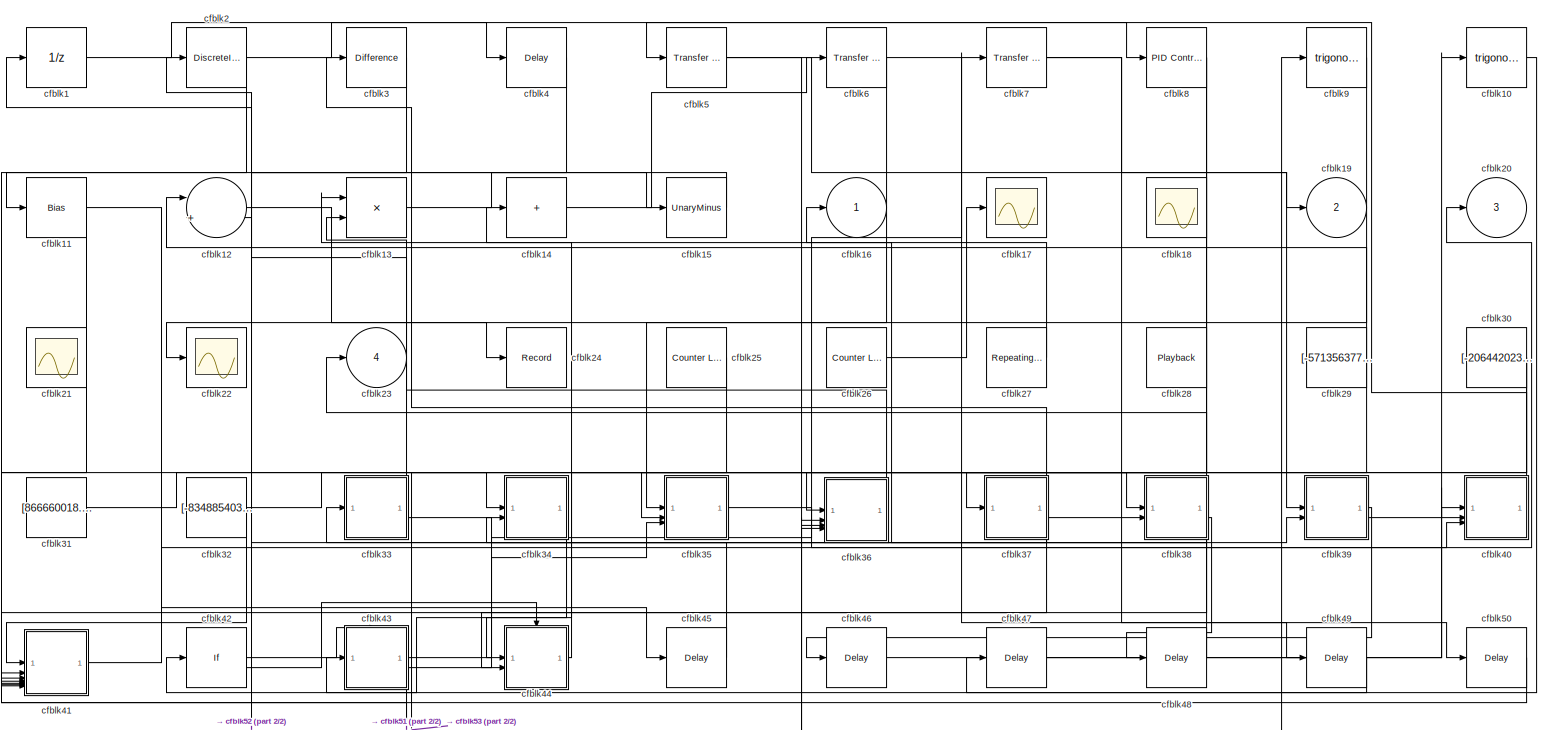
[diagram: root canvas - part 1/2, most of the canvas]
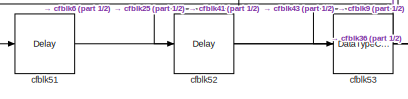
[diagram: root canvas - part 2/2, bottom left region]
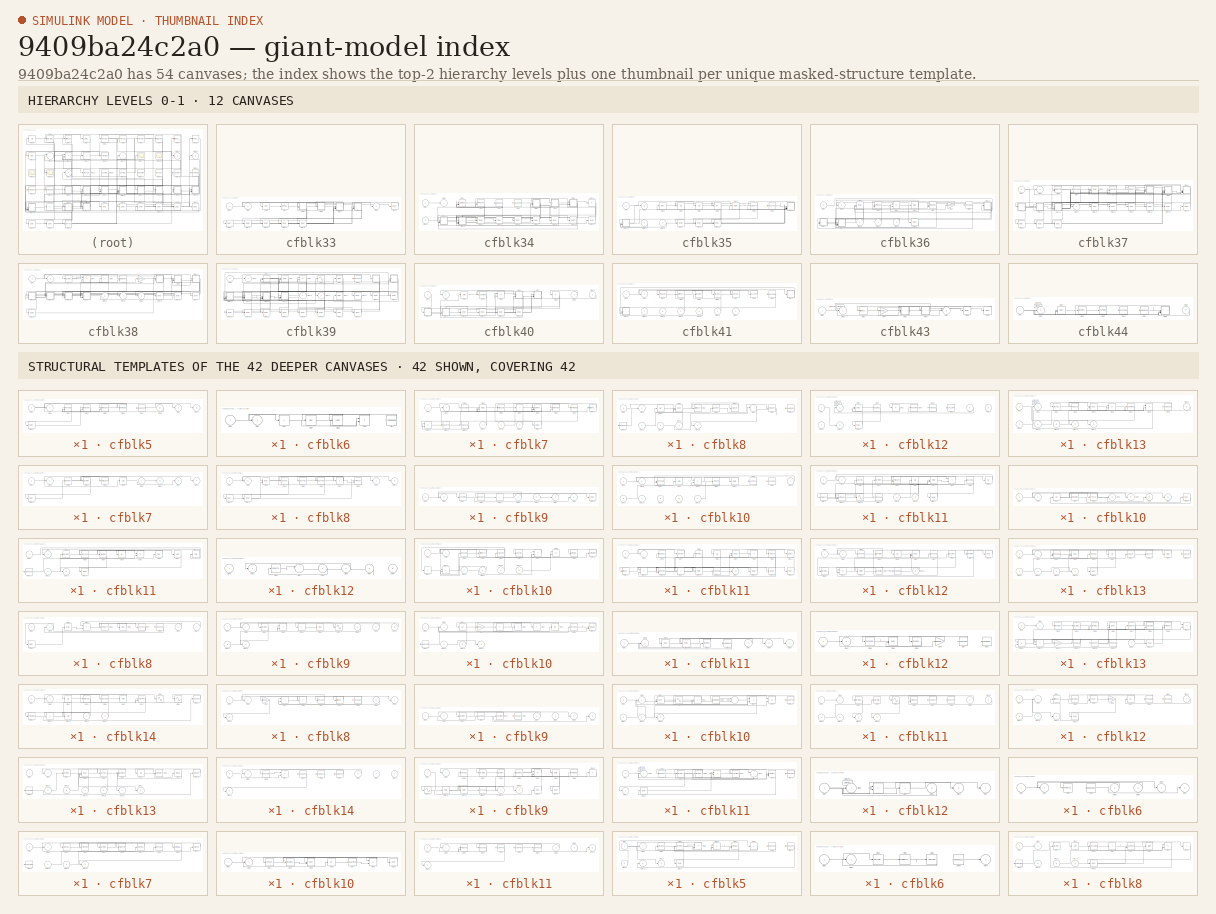
[diagram: thumbnail index - top-2 hierarchy levels (12 canvases) + 42 structural-template representatives of the remaining 42 canvases]
MODEL slx_9409ba24c2a0
KIND model
CONFIG AbsTol = auto
CONFIG EnableMultiTasking = off
CONFIG FixedStep = auto
CONFIG MaxStep = auto
CONFIG MinStep = auto
CONFIG RelTol = 1e-3
CONFIG SampleTimeConstraint = Unconstrained
CONFIG SolverName = VariableStepAuto
CONFIG StartTime = 0.0
CONFIG StopTime = 10.0
BLOCK [UnitDelay] cfblk1
  HasFrameUpgradeWarning = on
BLOCK [Trigonometry] cfblk10
BLOCK [Bias] cfblk11
  Bias = [923208923.967150]
  SaturateOnIntegerOverflow = off
BLOCK [Sum] cfblk12
  Inputs = |++
BLOCK [Product] cfblk13
BLOCK [Sum] cfblk14
  IconShape = rectangular
  Inputs = +
BLOCK [UnaryMinus] cfblk15
BLOCK [Outport] cfblk16
BLOCK [Scope] cfblk17
  Floating = off
  NumInputPorts = 1
BLOCK [Scope] cfblk18
  Floating = on
  NumInputPorts = 1
BLOCK [Outport] cfblk19
  Port = 2
BLOCK [DiscreteIntegrator] cfblk2
  ICPrevOutput = DiscIntNeverNeededParam
  ICPrevScaledInput = DiscIntNeverNeededParam
  InitialConditionSetting = Auto
BLOCK [Outport] cfblk20
  Port = 3
BLOCK [Scope] cfblk21
  Floating = on
  NumInputPorts = 1
BLOCK [Scope] cfblk22
  Floating = off
  NumInputPorts = 1
BLOCK [Outport] cfblk23
  Port = 4
BLOCK [Record] cfblk24
  FileSettingsInternal = {"entries":[{"content":{"excelSettings":{"content":{},"type":"Streamout.ExcelSettings"}},"type":"Streamout.FileSettingStorage","uuid":""}],"packageUris":["http:\/\/schema.mathworks.com\/mf0\/streamout_blocks\/R2020a"],"version":"1.0"}
  SignalsInternal = {"entries":[{"content":{"signals":[{"content":{"blockPath":[],"dimensions":[1],"domain":"","lineColor":"#ff6929","plots":[1],"port":1,"sid":[""],"signalID":3599,"signalName":"cfblk12"},"type":"RecordBlkView.Signal","uuid":""}]},"type":"RecordBlkView.InputSignals","uuid":""}],"packageUris":["http:\/\/schema.mathworks.com\/mf0\/streamout_blocks\/R2020a"],"version":"1.0"}
  VisualizationBindings = {"sparklinesplugin":{"info":[{"bindingParametersList":[],"subplotID":1}]}}
BLOCK [Reference] cfblk25  REF=simulink/Sources/Counter
Limited
  SourceBlock = simulink/Sources/Counter\nLimited
  SourceType = Counter Limited
BLOCK [Reference] cfblk26  REF=simulink/Sources/Counter
Limited
  SourceBlock = simulink/Sources/Counter\nLimited
  SourceType = Counter Limited
BLOCK [Reference] cfblk27  REF=simulink/Sources/Repeating
Sequence
Interpolated
  SourceBlock = simulink/Sources/Repeating\nSequence\nInterpolated
  SourceType = Repeating Sequence Interpolated
BLOCK [Playback] cfblk28
  NumPorts = 0
  PartName = b20fab14-a049-489c-adbd-99bd70615e82
BLOCK [Constant] cfblk29
  SampleTime = 1
  Value = [-571356377.627754]
BLOCK [Reference] cfblk3  REF=simulink/Discrete/Difference
  SourceBlock = simulink/Discrete/Difference
  SourceType = Difference
BLOCK [Constant] cfblk30
  SampleTime = 1
  Value = [-206442023.868177]
BLOCK [Constant] cfblk31
  SampleTime = 1
  Value = [866660018.763350]
BLOCK [Constant] cfblk32
  SampleTime = 1
  Value = [-834885403.204460]
BLOCK [SubSystem] cfblk33
BLOCK [Inport] cfblk33/cfblk1
BLOCK [Delay] cfblk33/cfblk10
  InputPortMap = u0
  SampleTime = 1
BLOCK [Delay] cfblk33/cfblk11
  InputPortMap = u0
  SampleTime = 1
BLOCK [Delay] cfblk33/cfblk12
  InputPortMap = u0
  SampleTime = 1
BLOCK [Delay] cfblk33/cfblk13
  InputPortMap = u0
  SampleTime = 1
BLOCK [Delay] cfblk33/cfblk14
  InputPortMap = u0
  SampleTime = 1
BLOCK [Delay] cfblk33/cfblk15
  InputPortMap = u0
  SampleTime = 1
BLOCK [Outport] cfblk33/cfblk2
BLOCK [Bias] cfblk33/cfblk3
  Bias = [280555499.209251]
  SaturateOnIntegerOverflow = off
BLOCK [Reference] cfblk33/cfblk4  REF=simulink/Math
Operations/Slider
Gain
  SourceBlock = simulink/Math\nOperations/Slider\nGain
  SourceType = Slider Gain
BLOCK [SubSystem] cfblk33/cfblk5
BLOCK [Inport] cfblk33/cfblk5/cfblk1
BLOCK [Outport] cfblk33/cfblk5/cfblk10
  Port = 3
BLOCK [Delay] cfblk33/cfblk5/cfblk11
  InputPortMap = u0
  SampleTime = 1
BLOCK [Outport] cfblk33/cfblk5/cfblk2
BLOCK [PropagationDelay] cfblk33/cfblk5/cfblk3
  SampleTime = 1
BLOCK [Reference] cfblk33/cfblk5/cfblk4  REF=simulink/Math
Operations/MinMax
Running
Resettable
  SourceBlock = simulink/Math\nOperations/MinMax\nRunning\nResettable
  SourceType = MinMax Running Resettable
BLOCK [Reference] cfblk33/cfblk5/cfblk5  REF=simulink/Math
Operations/MinMax
Running
Resettable
  SourceBlock = simulink/Math\nOperations/MinMax\nRunning\nResettable
  SourceType = MinMax Running Resettable
BLOCK [PermuteDimensions] cfblk33/cfblk5/cfblk6
BLOCK [Constant] cfblk33/cfblk5/cfblk7
  SampleTime = 1
  Value = [815652369.202711]
BLOCK [Inport] cfblk33/cfblk5/cfblk8
  Port = 2
BLOCK [Outport] cfblk33/cfblk5/cfblk9
  Port = 2
BLOCK [SubSystem] cfblk33/cfblk6
BLOCK [Inport] cfblk33/cfblk6/cfblk1
BLOCK [Outport] cfblk33/cfblk6/cfblk2
BLOCK [Sum] cfblk33/cfblk6/cfblk3
  IconShape = rectangular
  Inputs = +
BLOCK [Bias] cfblk33/cfblk6/cfblk4
  Bias = [-522416102.489031]
  SaturateOnIntegerOverflow = off
BLOCK [Sqrt] cfblk33/cfblk6/cfblk5
  AlgorithmType = Newton-Raphson
  Operator = rSqrt
BLOCK [Product] cfblk33/cfblk6/cfblk6
BLOCK [Constant] cfblk33/cfblk6/cfblk7
  SampleTime = 1
  Value = [-798995891.397461]
BLOCK [SubSystem] cfblk33/cfblk7
BLOCK [Inport] cfblk33/cfblk7/cfblk1
BLOCK [Trigonometry] cfblk33/cfblk7/cfblk10
BLOCK [Sum] cfblk33/cfblk7/cfblk11
  IconShape = rectangular
  Inputs = +-
BLOCK [Constant] cfblk33/cfblk7/cfblk12
  SampleTime = 1
  Value = [-685629748.339477]
BLOCK [Constant] cfblk33/cfblk7/cfblk13
  SampleTime = 1
  Value = [-270033146.080441]
BLOCK [Inport] cfblk33/cfblk7/cfblk14
  Port = 2
BLOCK [Inport] cfblk33/cfblk7/cfblk15
  Port = 3
BLOCK [Inport] cfblk33/cfblk7/cfblk16
  Port = 4
BLOCK [Delay] cfblk33/cfblk7/cfblk17
  InputPortMap = u0
  SampleTime = 1
BLOCK [Outport] cfblk33/cfblk7/cfblk2
BLOCK [Reference] cfblk33/cfblk7/cfblk3  REF=simulink/Discrete/Tapped Delay
  SourceBlock = simulink/Discrete/Tapped Delay
  SourceType = Tapped Delay Line
BLOCK [Delay] cfblk33/cfblk7/cfblk4
  DelayLengthSource = Input port
  InputPortMap = u0,p1
  SampleTime = 1
BLOCK [Reference] cfblk33/cfblk7/cfblk5  REF=slpidlib/PID Controller
  LibrarySourceBlock = simulink/Discrete/Discrete PID Controller
  SourceBlock = slpidlib/PID Controller
  SourceType = PID 1dof
BLOCK [Sum] cfblk33/cfblk7/cfblk6
  IconShape = rectangular
  Inputs = +
BLOCK [MinMax] cfblk33/cfblk7/cfblk7
  Inputs = 3
BLOCK [Reference] cfblk33/cfblk7/cfblk8  REF=simulink/Math
Operations/MinMax
Running
Resettable
  SourceBlock = simulink/Math\nOperations/MinMax\nRunning\nResettable
  SourceType = MinMax Running Resettable
BLOCK [PermuteDimensions] cfblk33/cfblk7/cfblk9
BLOCK [SubSystem] cfblk33/cfblk8
BLOCK [Inport] cfblk33/cfblk8/cfblk1
BLOCK [Constant] cfblk33/cfblk8/cfblk10
  SampleTime = 1
  Value = [-544680512.953130]
BLOCK [Constant] cfblk33/cfblk8/cfblk11
  SampleTime = 1
  Value = [506500576.835107]
BLOCK [Inport] cfblk33/cfblk8/cfblk12
  Port = 2
BLOCK [Inport] cfblk33/cfblk8/cfblk13
  Port = 3
BLOCK [Inport] cfblk33/cfblk8/cfblk14
  Port = 4
BLOCK [Outport] cfblk33/cfblk8/cfblk15
  Port = 2
BLOCK [Outport] cfblk33/cfblk8/cfblk2
BLOCK [UnitDelay] cfblk33/cfblk8/cfblk3
  HasFrameUpgradeWarning = on
BLOCK [Delay] cfblk33/cfblk8/cfblk4
  InputPortMap = u0,e6
  SampleTime = 1
  ShowEnablePort = on
BLOCK [Reference] cfblk33/cfblk8/cfblk5  REF=simulink/Discrete/Difference
  SourceBlock = simulink/Discrete/Difference
  SourceType = Difference
BLOCK [DiscreteTransferFcn] cfblk33/cfblk8/cfblk6
  InputPortMap = u0
  SampleTime = 1
BLOCK [Signum] cfblk33/cfblk8/cfblk7
BLOCK [Sum] cfblk33/cfblk8/cfblk8
  Inputs = |++
BLOCK [ComplexToRealImag] cfblk33/cfblk8/cfblk9
BLOCK [Outport] cfblk33/cfblk9
  Port = 2
BLOCK [SubSystem] cfblk34
BLOCK [Inport] cfblk34/cfblk1
BLOCK [If] cfblk34/cfblk10
  IfExpression = u1 >= 0
  SampleTime = 1
BLOCK [Inport] cfblk34/cfblk11
  Port = 2
BLOCK [SubSystem] cfblk34/cfblk12
  TreatAsAtomicUnit = on
BLOCK [ActionPort] cfblk34/cfblk12/Action Port
  ActionPortLabel = if(u1 >= 0)
BLOCK [Inport] cfblk34/cfblk12/cfblk1
BLOCK [Inport] cfblk34/cfblk12/cfblk10
  Port = 3
BLOCK [Inport] cfblk34/cfblk12/cfblk11
  Port = 4
BLOCK [Outport] cfblk34/cfblk12/cfblk12
  Port = 2
BLOCK [Delay] cfblk34/cfblk12/cfblk13
  InputPortMap = u0
BLOCK [Outport] cfblk34/cfblk12/cfblk2
BLOCK [Delay] cfblk34/cfblk12/cfblk3
  DelayLengthSource = Input port
  InputPortMap = u0,p1
BLOCK [DiscreteZeroPole] cfblk34/cfblk12/cfblk4
  Gain = 1
  Poles = [0 0.5]
  SampleTime = -1
BLOCK [Product] cfblk34/cfblk12/cfblk5
  Inputs = *
BLOCK [Rounding] cfblk34/cfblk12/cfblk6
BLOCK [Constant] cfblk34/cfblk12/cfblk7
  SampleTime = 1
  Value = [-74655399.879822]
BLOCK [Constant] cfblk34/cfblk12/cfblk8
  SampleTime = 1
  Value = [-101411849.006172]
BLOCK [Inport] cfblk34/cfblk12/cfblk9
  Port = 2
BLOCK [SubSystem] cfblk34/cfblk13
  TreatAsAtomicUnit = on
BLOCK [ActionPort] cfblk34/cfblk13/Action Port
  ActionPortLabel = else
BLOCK [Inport] cfblk34/cfblk13/cfblk1
BLOCK [Inport] cfblk34/cfblk13/cfblk10
  Port = 2
BLOCK [Inport] cfblk34/cfblk13/cfblk11
  Port = 3
BLOCK [Inport] cfblk34/cfblk13/cfblk12
  Port = 4
BLOCK [Inport] cfblk34/cfblk13/cfblk13
  Port = 5
BLOCK [Outport] cfblk34/cfblk13/cfblk14
  Port = 2
BLOCK [Outport] cfblk34/cfblk13/cfblk15
  Port = 3
BLOCK [Outport] cfblk34/cfblk13/cfblk2
BLOCK [Reference] cfblk34/cfblk13/cfblk3  REF=simulink/Discrete/Transfer Fcn
Lead or Lag
  SourceBlock = simulink/Discrete/Transfer Fcn\nLead or Lag
  SourceType = Lead or Lag Compensator
BLOCK [Reference] cfblk34/cfblk13/cfblk4  REF=slpidlib/PID Controller
  LibrarySourceBlock = simulink/Discrete/Discrete PID Controller
  SourceBlock = slpidlib/PID Controller
  SourceType = PID 1dof
BLOCK [Delay] cfblk34/cfblk13/cfblk5
  InputPortMap = u0,e6
  ShowEnablePort = on
BLOCK [Sum] cfblk34/cfblk13/cfblk6
  IconShape = rectangular
  Inputs = +-
BLOCK [UnaryMinus] cfblk34/cfblk13/cfblk7
BLOCK [Product] cfblk34/cfblk13/cfblk8
BLOCK [Constant] cfblk34/cfblk13/cfblk9
  SampleTime = 1
  Value = [791996309.879964]
BLOCK [Delay] cfblk34/cfblk14
  InputPortMap = u0
  SampleTime = 1
BLOCK [Delay] cfblk34/cfblk15
  InputPortMap = u0
  SampleTime = 1
BLOCK [Delay] cfblk34/cfblk16
  InputPortMap = u0
  SampleTime = 1
BLOCK [Delay] cfblk34/cfblk17
  InputPortMap = u0
  SampleTime = 1
BLOCK [Delay] cfblk34/cfblk18
  InputPortMap = u0
  SampleTime = 1
BLOCK [Delay] cfblk34/cfblk19
  InputPortMap = u0
  SampleTime = 1
BLOCK [Outport] cfblk34/cfblk2
BLOCK [Delay] cfblk34/cfblk20
  InputPortMap = u0
  SampleTime = 1
BLOCK [MinMax] cfblk34/cfblk3
  Inputs = 3
BLOCK [Reference] cfblk34/cfblk4  REF=simulink/Math
Operations/MinMax
Running
Resettable
  SourceBlock = simulink/Math\nOperations/MinMax\nRunning\nResettable
  SourceType = MinMax Running Resettable
BLOCK [Constant] cfblk34/cfblk5
  SampleTime = 1
  Value = [-155652742.850595]
BLOCK [Constant] cfblk34/cfblk6
  SampleTime = 1
  Value = [474529404.988857]
BLOCK [SubSystem] cfblk34/cfblk7
BLOCK [Inport] cfblk34/cfblk7/cfblk1
BLOCK [Outport] cfblk34/cfblk7/cfblk10
  Port = 4
BLOCK [Delay] cfblk34/cfblk7/cfblk11
  InputPortMap = u0
  SampleTime = 1
BLOCK [Outport] cfblk34/cfblk7/cfblk2
BLOCK [DiscreteTransferFcn] cfblk34/cfblk7/cfblk3
  InputPortMap = u0
  SampleTime = 1
BLOCK [DiscreteTransferFcn] cfblk34/cfblk7/cfblk4
  InputPortMap = u0
  SampleTime = 1
BLOCK [Reference] cfblk34/cfblk7/cfblk5  REF=slpidlib/PID Controller
  LibrarySourceBlock = simulink/Discrete/Discrete PID Controller
  SourceBlock = slpidlib/PID Controller
  SourceType = PID 1dof
BLOCK [Sqrt] cfblk34/cfblk7/cfblk6
BLOCK [Inport] cfblk34/cfblk7/cfblk7
  Port = 2
BLOCK [Outport] cfblk34/cfblk7/cfblk8
  Port = 2
BLOCK [Outport] cfblk34/cfblk7/cfblk9
  Port = 3
BLOCK [SubSystem] cfblk34/cfblk8
BLOCK [Inport] cfblk34/cfblk8/cfblk1
BLOCK [Outport] cfblk34/cfblk8/cfblk10
  Port = 3
BLOCK [Delay] cfblk34/cfblk8/cfblk11
  InputPortMap = u0
  SampleTime = 1
BLOCK [Delay] cfblk34/cfblk8/cfblk12
  InputPortMap = u0
  SampleTime = 1
BLOCK [Outport] cfblk34/cfblk8/cfblk2
BLOCK [Delay] cfblk34/cfblk8/cfblk3
  DelayLengthSource = Input port
  InputPortMap = u0,p1
  SampleTime = 1
BLOCK [Reference] cfblk34/cfblk8/cfblk4  REF=simulink/Discrete/Transfer Fcn
First Order
  SourceBlock = simulink/Discrete/Transfer Fcn\nFirst Order
  SourceType = First Order Transfer Fcn
BLOCK [Reshape] cfblk34/cfblk8/cfblk5
BLOCK [Rounding] cfblk34/cfblk8/cfblk6
BLOCK [Product] cfblk34/cfblk8/cfblk7
  Inputs = *
BLOCK [DotProduct] cfblk34/cfblk8/cfblk8
  OutDataTypeStr = Inherit: Inherit via internal rule
BLOCK [Outport] cfblk34/cfblk8/cfblk9
  Port = 2
BLOCK [SubSystem] cfblk34/cfblk9
BLOCK [Inport] cfblk34/cfblk9/cfblk1
BLOCK [Delay] cfblk34/cfblk9/cfblk10
  InputPortMap = u0
  SampleTime = 1
BLOCK [Outport] cfblk34/cfblk9/cfblk2
BLOCK [Rounding] cfblk34/cfblk9/cfblk3
BLOCK [Reshape] cfblk34/cfblk9/cfblk4
BLOCK [Sum] cfblk34/cfblk9/cfblk5
  IconShape = rectangular
  Inputs = +
BLOCK [Inport] cfblk34/cfblk9/cfblk6
  Port = 2
BLOCK [Inport] cfblk34/cfblk9/cfblk7
  Port = 3
BLOCK [Outport] cfblk34/cfblk9/cfblk8
  Port = 2
BLOCK [Outport] cfblk34/cfblk9/cfblk9
  Port = 3
BLOCK [SubSystem] cfblk35
BLOCK [Inport] cfblk35/cfblk1
BLOCK [SubSystem] cfblk35/cfblk10
BLOCK [Inport] cfblk35/cfblk10/cfblk1
BLOCK [Inport] cfblk35/cfblk10/cfblk10
  Port = 2
BLOCK [Inport] cfblk35/cfblk10/cfblk11
  Port = 3
BLOCK [Inport] cfblk35/cfblk10/cfblk12
  Port = 4
BLOCK [Inport] cfblk35/cfblk10/cfblk13
  Port = 5
BLOCK [Inport] cfblk35/cfblk10/cfblk14
  Port = 6
BLOCK [Inport] cfblk35/cfblk10/cfblk15
  Port = 7
BLOCK [Outport] cfblk35/cfblk10/cfblk2
BLOCK [PropagationDelay] cfblk35/cfblk10/cfblk3
  SampleTime = 1
BLOCK [Sqrt] cfblk35/cfblk10/cfblk4
BLOCK [Product] cfblk35/cfblk10/cfblk5
  Inputs = **
BLOCK [Signum] cfblk35/cfblk10/cfblk6
BLOCK [Sqrt] cfblk35/cfblk10/cfblk7
  AlgorithmType = Newton-Raphson
  Operator = rSqrt
BLOCK [Constant] cfblk35/cfblk10/cfblk8
  SampleTime = 1
  Value = [604776771.456297]
BLOCK [Constant] cfblk35/cfblk10/cfblk9
  SampleTime = 1
  Value = [-246743620.445108]
BLOCK [SubSystem] cfblk35/cfblk11
BLOCK [Inport] cfblk35/cfblk11/cfblk1
BLOCK [Abs] cfblk35/cfblk11/cfblk10
  SaturateOnIntegerOverflow = off
BLOCK [ComplexToRealImag] cfblk35/cfblk11/cfblk11
BLOCK [DotProduct] cfblk35/cfblk11/cfblk12
  OutDataTypeStr = Inherit: Inherit via internal rule
BLOCK [Sin] cfblk35/cfblk11/cfblk13
  SampleTime = 0
  TimeSource = Use external signal
BLOCK [Constant] cfblk35/cfblk11/cfblk14
  SampleTime = 1
  Value = [175571231.114876]
BLOCK [Inport] cfblk35/cfblk11/cfblk15
  Port = 2
BLOCK [Inport] cfblk35/cfblk11/cfblk16
  Port = 3
BLOCK [Delay] cfblk35/cfblk11/cfblk17
  InputPortMap = u0
  SampleTime = 1
BLOCK [Outport] cfblk35/cfblk11/cfblk2
BLOCK [Reference] cfblk35/cfblk11/cfblk3  REF=simulink/Discrete/Transfer Fcn
Lead or Lag
  SourceBlock = simulink/Discrete/Transfer Fcn\nLead or Lag
  SourceType = Lead or Lag Compensator
BLOCK [DiscreteFir] cfblk35/cfblk11/cfblk4
  InputPortMap = u0
  OutputPortMap = o0
  SampleTime = 1
BLOCK [Reference] cfblk35/cfblk11/cfblk5  REF=slpidlib/PID Controller (2DOF)
  LibrarySourceBlock = simulink/Discrete/Discrete PID Controller (2DOF)
  SourceBlock = slpidlib/PID Controller (2DOF)
  SourceType = PID 2dof
BLOCK [UnitDelay] cfblk35/cfblk11/cfblk6
  HasFrameUpgradeWarning = on
BLOCK [Math] cfblk35/cfblk11/cfblk7
  Operator = mod
BLOCK [Product] cfblk35/cfblk11/cfblk8
BLOCK [Reshape] cfblk35/cfblk11/cfblk9
BLOCK [Inport] cfblk35/cfblk12
  Port = 2
BLOCK [Inport] cfblk35/cfblk13
  Port = 3
BLOCK [Delay] cfblk35/cfblk14
  InputPortMap = u0
  SampleTime = 1
BLOCK [Delay] cfblk35/cfblk15
  InputPortMap = u0
  SampleTime = 1
BLOCK [Delay] cfblk35/cfblk16
  InputPortMap = u0
  SampleTime = 1
BLOCK [Outport] cfblk35/cfblk2
BLOCK [Delay] cfblk35/cfblk3
  InputPortMap = u0
  SampleTime = 1
BLOCK [UnitDelay] cfblk35/cfblk4
  HasFrameUpgradeWarning = on
BLOCK [UnitDelay] cfblk35/cfblk5
  HasFrameUpgradeWarning = on
BLOCK [Abs] cfblk35/cfblk6
  SaturateOnIntegerOverflow = off
BLOCK [Sqrt] cfblk35/cfblk7
  AlgorithmType = Newton-Raphson
  Operator = rSqrt
BLOCK [ComplexToMagnitudeAngle] cfblk35/cfblk8
BLOCK [Constant] cfblk35/cfblk9
  SampleTime = 1
  Value = [-846214747.053952]
BLOCK [SubSystem] cfblk36
BLOCK [Inport] cfblk36/cfblk1
BLOCK [SubSystem] cfblk36/cfblk10
BLOCK [Inport] cfblk36/cfblk10/cfblk1
BLOCK [Delay] cfblk36/cfblk10/cfblk10
  InputPortMap = u0
  SampleTime = 1
BLOCK [Outport] cfblk36/cfblk10/cfblk2
BLOCK [UnitDelay] cfblk36/cfblk10/cfblk3
  HasFrameUpgradeWarning = on
BLOCK [DiscreteIntegrator] cfblk36/cfblk10/cfblk4
  ICPrevOutput = DiscIntNeverNeededParam
  ICPrevScaledInput = DiscIntNeverNeededParam
  InitialConditionSetting = Auto
BLOCK [Polyval] cfblk36/cfblk10/cfblk5
  Coefs = [ +2.081618890e-019, -1.441693666e-014, +4.719686976e-010, -8.536869453e-006, +1.621573104e-001, -8.087801117e+001 ]
BLOCK [Outport] cfblk36/cfblk10/cfblk6
  Port = 2
BLOCK [Outport] cfblk36/cfblk10/cfblk7
  Port = 3
BLOCK [Outport] cfblk36/cfblk10/cfblk8
  Port = 4
BLOCK [Outport] cfblk36/cfblk10/cfblk9
  Port = 5
BLOCK [SubSystem] cfblk36/cfblk11
BLOCK [Inport] cfblk36/cfblk11/cfblk1
BLOCK [Sqrt] cfblk36/cfblk11/cfblk10
BLOCK [Constant] cfblk36/cfblk11/cfblk11
  SampleTime = 1
  Value = [-548459394.836145]
BLOCK [Inport] cfblk36/cfblk11/cfblk12
  Port = 2
BLOCK [Outport] cfblk36/cfblk11/cfblk13
  Port = 2
BLOCK [Delay] cfblk36/cfblk11/cfblk14
  InputPortMap = u0
  SampleTime = 1
BLOCK [Outport] cfblk36/cfblk11/cfblk2
BLOCK [DiscreteFilter] cfblk36/cfblk11/cfblk3
  InputPortMap = u0
  SampleTime = 1
BLOCK [Squeeze] cfblk36/cfblk11/cfblk4
BLOCK [Reference] cfblk36/cfblk11/cfblk5  REF=simulink/Math
Operations/Slider
Gain
  SourceBlock = simulink/Math\nOperations/Slider\nGain
  SourceType = Slider Gain
BLOCK [Abs] cfblk36/cfblk11/cfblk6
  SaturateOnIntegerOverflow = off
BLOCK [Product] cfblk36/cfblk11/cfblk7
BLOCK [Bias] cfblk36/cfblk11/cfblk8
  Bias = [-249517717.832807]
  SaturateOnIntegerOverflow = off
BLOCK [Sqrt] cfblk36/cfblk11/cfblk9
BLOCK [SubSystem] cfblk36/cfblk12
BLOCK [Inport] cfblk36/cfblk12/cfblk1
BLOCK [Outport] cfblk36/cfblk12/cfblk2
BLOCK [ComplexToMagnitudeAngle] cfblk36/cfblk12/cfblk3
BLOCK [Sum] cfblk36/cfblk12/cfblk4
  Inputs = |++
BLOCK [Inport] cfblk36/cfblk12/cfblk5
  Port = 2
BLOCK [Inport] cfblk36/cfblk12/cfblk6
  Port = 3
BLOCK [Inport] cfblk36/cfblk12/cfblk7
  Port = 4
BLOCK [Inport] cfblk36/cfblk12/cfblk8
  Port = 5
BLOCK [Inport] cfblk36/cfblk13
  Port = 2
BLOCK [Inport] cfblk36/cfblk14
  Port = 3
BLOCK [Inport] cfblk36/cfblk15
  Port = 4
BLOCK [Delay] cfblk36/cfblk16
  InputPortMap = u0
  SampleTime = 1
BLOCK [Outport] cfblk36/cfblk2
BLOCK [Delay] cfblk36/cfblk3
  InputPortMap = u0,e6
  SampleTime = 1
  ShowEnablePort = on
BLOCK [DotProduct] cfblk36/cfblk4
  OutDataTypeStr = Inherit: Inherit via internal rule
BLOCK [Sum] cfblk36/cfblk5
  IconShape = rectangular
  Inputs = +-
BLOCK [Bias] cfblk36/cfblk6
  Bias = [-194164036.502314]
  SaturateOnIntegerOverflow = off
BLOCK [Reference] cfblk36/cfblk7  REF=simulink/Math
Operations/MinMax
Running
Resettable
  SourceBlock = simulink/Math\nOperations/MinMax\nRunning\nResettable
  SourceType = MinMax Running Resettable
BLOCK [Gain] cfblk36/cfblk8
  Gain = [756991828.440639]
BLOCK [Constant] cfblk36/cfblk9
  SampleTime = 1
  Value = [963201861.308035]
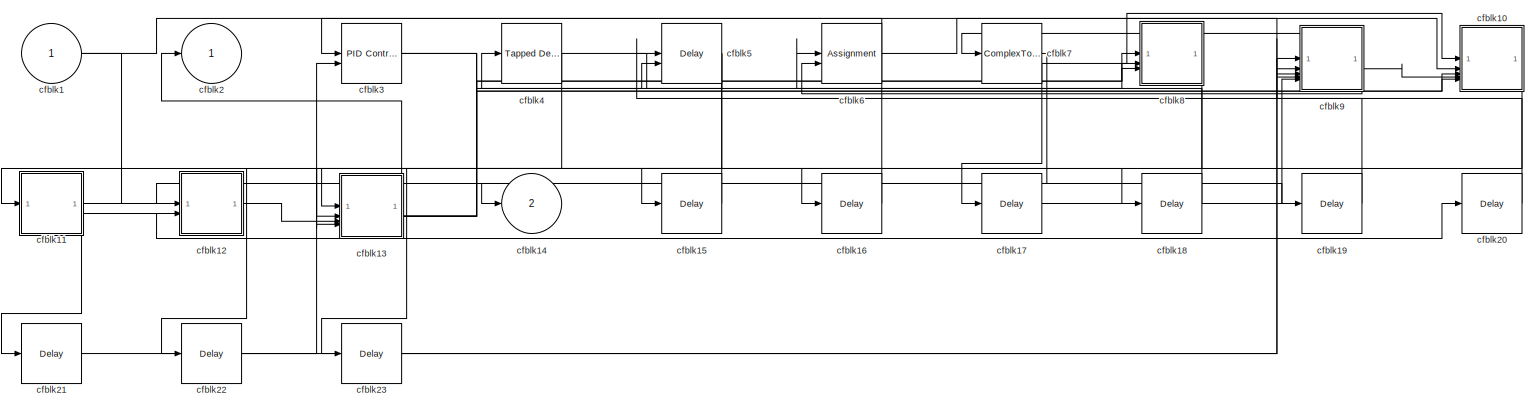
[diagram: cfblk37 - part 1/1, most of the canvas]
BLOCK [SubSystem] cfblk37
BLOCK [Inport] cfblk37/cfblk1
BLOCK [SubSystem] cfblk37/cfblk10
BLOCK [Inport] cfblk37/cfblk10/cfblk1
BLOCK [PermuteDimensions] cfblk37/cfblk10/cfblk10
BLOCK [Product] cfblk37/cfblk10/cfblk11
  Inputs = *
BLOCK [Sum] cfblk37/cfblk10/cfblk12
  IconShape = rectangular
BLOCK [Inport] cfblk37/cfblk10/cfblk13
  Port = 2
BLOCK [Inport] cfblk37/cfblk10/cfblk14
  Port = 3
BLOCK [Inport] cfblk37/cfblk10/cfblk15
  Port = 4
BLOCK [Inport] cfblk37/cfblk10/cfblk16
  Port = 5
BLOCK [Outport] cfblk37/cfblk10/cfblk2
BLOCK [Reference] cfblk37/cfblk10/cfblk3  REF=simulink/Discrete/Tapped Delay
  SourceBlock = simulink/Discrete/Tapped Delay
  SourceType = Tapped Delay Line
BLOCK [Reference] cfblk37/cfblk10/cfblk4  REF=simulink/Discrete/Difference
  SourceBlock = simulink/Discrete/Difference
  SourceType = Difference
BLOCK [Reference] cfblk37/cfblk10/cfblk5  REF=simulink/Discrete/Transfer Fcn
First Order
  SourceBlock = simulink/Discrete/Transfer Fcn\nFirst Order
  SourceType = First Order Transfer Fcn
BLOCK [Reference] cfblk37/cfblk10/cfblk6  REF=simulink/Discrete/Transfer Fcn
Lead or Lag
  SourceBlock = simulink/Discrete/Transfer Fcn\nLead or Lag
  SourceType = Lead or Lag Compensator
BLOCK [Sum] cfblk37/cfblk10/cfblk7
  IconShape = rectangular
BLOCK [Sum] cfblk37/cfblk10/cfblk8
  IconShape = rectangular
  Inputs = +-
BLOCK [Reference] cfblk37/cfblk10/cfblk9  REF=simulink/Math
Operations/Slider
Gain
  SourceBlock = simulink/Math\nOperations/Slider\nGain
  SourceType = Slider Gain
BLOCK [SubSystem] cfblk37/cfblk11
BLOCK [Inport] cfblk37/cfblk11/cfblk1
BLOCK [Math] cfblk37/cfblk11/cfblk10
  Operator = log10
BLOCK [Trigonometry] cfblk37/cfblk11/cfblk11
BLOCK [Product] cfblk37/cfblk11/cfblk12
  Inputs = **
BLOCK [Assignment] cfblk37/cfblk11/cfblk13
  DiagnosticForDimensions = Warning
  IndexOptions = Index vector (dialog)
  Indices = 1
  OutputSizes = 1
BLOCK [Sum] cfblk37/cfblk11/cfblk14
  IconShape = rectangular
  Inputs = +
BLOCK [Sqrt] cfblk37/cfblk11/cfblk15
  AlgorithmType = Newton-Raphson
  Operator = rSqrt
BLOCK [Constant] cfblk37/cfblk11/cfblk16
  SampleTime = 1
  Value = [-711487186.820128]
BLOCK [Outport] cfblk37/cfblk11/cfblk17
  Port = 2
BLOCK [Delay] cfblk37/cfblk11/cfblk18
  InputPortMap = u0
  SampleTime = 1
BLOCK [Delay] cfblk37/cfblk11/cfblk19
  InputPortMap = u0
  SampleTime = 1
BLOCK [Outport] cfblk37/cfblk11/cfblk2
BLOCK [Delay] cfblk37/cfblk11/cfblk20
  InputPortMap = u0
  SampleTime = 1
BLOCK [DiscreteStateSpace] cfblk37/cfblk11/cfblk3
BLOCK [Reference] cfblk37/cfblk11/cfblk4  REF=simulink/Discrete/Transfer Fcn
Lead or Lag
  SourceBlock = simulink/Discrete/Transfer Fcn\nLead or Lag
  SourceType = Lead or Lag Compensator
BLOCK [DiscreteStateSpace] cfblk37/cfblk11/cfblk5
BLOCK [UnitDelay] cfblk37/cfblk11/cfblk6
  HasFrameUpgradeWarning = on
BLOCK [Delay] cfblk37/cfblk11/cfblk7
  DelayLengthSource = Input port
  InputPortMap = u0,p1
  SampleTime = 1
BLOCK [Sum] cfblk37/cfblk11/cfblk8
  IconShape = rectangular
  Inputs = +
BLOCK [Signum] cfblk37/cfblk11/cfblk9
BLOCK [SubSystem] cfblk37/cfblk12
BLOCK [Inport] cfblk37/cfblk12/cfblk1
BLOCK [Delay] cfblk37/cfblk12/cfblk10
  InputPortMap = u0
  SampleTime = 1
BLOCK [DiscreteZeroPole] cfblk37/cfblk12/cfblk11
  Gain = 1
  Poles = [0 0.5]
BLOCK [Sum] cfblk37/cfblk12/cfblk12
  IconShape = rectangular
  Inputs = -+
BLOCK [Sqrt] cfblk37/cfblk12/cfblk13
  AlgorithmType = Newton-Raphson
  Operator = rSqrt
BLOCK [UnaryMinus] cfblk37/cfblk12/cfblk14
BLOCK [Constant] cfblk37/cfblk12/cfblk15
  SampleTime = 1
  Value = [60376909.899048]
BLOCK [Inport] cfblk37/cfblk12/cfblk16
  Port = 2
BLOCK [Outport] cfblk37/cfblk12/cfblk2
BLOCK [Reference] cfblk37/cfblk12/cfblk3  REF=simulink/Discrete/Tapped Delay
  SourceBlock = simulink/Discrete/Tapped Delay
  SourceType = Tapped Delay Line
BLOCK [DiscreteStateSpace] cfblk37/cfblk12/cfblk4
BLOCK [UnitDelay] cfblk37/cfblk12/cfblk5
  HasFrameUpgradeWarning = on
BLOCK [Delay] cfblk37/cfblk12/cfblk6
  DelayLengthSource = Input port
  InputPortMap = u0,p1
  SampleTime = 1
BLOCK [Reference] cfblk37/cfblk12/cfblk7  REF=simulink/Discrete/Tapped Delay
  SourceBlock = simulink/Discrete/Tapped Delay
  SourceType = Tapped Delay Line
BLOCK [DiscreteFir] cfblk37/cfblk12/cfblk8
  InputPortMap = u0
  OutputPortMap = o0
  SampleTime = 1
BLOCK [DiscreteFir] cfblk37/cfblk12/cfblk9
  InputPortMap = u0
  OutputPortMap = o0
  SampleTime = 1
BLOCK [SubSystem] cfblk37/cfblk13
BLOCK [Inport] cfblk37/cfblk13/cfblk1
BLOCK [Constant] cfblk37/cfblk13/cfblk10
  SampleTime = 1
  Value = [801323161.151819]
BLOCK [Inport] cfblk37/cfblk13/cfblk11
  Port = 2
BLOCK [Inport] cfblk37/cfblk13/cfblk12
  Port = 3
BLOCK [Inport] cfblk37/cfblk13/cfblk13
  Port = 4
BLOCK [Outport] cfblk37/cfblk13/cfblk14
  Port = 2
BLOCK [Delay] cfblk37/cfblk13/cfblk15
  InputPortMap = u0
  SampleTime = 1
BLOCK [Outport] cfblk37/cfblk13/cfblk2
BLOCK [PropagationDelay] cfblk37/cfblk13/cfblk3
  SampleTime = 1
BLOCK [Delay] cfblk37/cfblk13/cfblk4
  InputPortMap = u0,e6
  SampleTime = 1
  ShowEnablePort = on
BLOCK [Reference] cfblk37/cfblk13/cfblk5  REF=simulink/Discrete/Transfer Fcn
First Order
  SourceBlock = simulink/Discrete/Transfer Fcn\nFirst Order
  SourceType = First Order Transfer Fcn
BLOCK [UnitDelay] cfblk37/cfblk13/cfblk6
  HasFrameUpgradeWarning = on
BLOCK [Signum] cfblk37/cfblk13/cfblk7
BLOCK [Squeeze] cfblk37/cfblk13/cfblk8
BLOCK [Sqrt] cfblk37/cfblk13/cfblk9
  AlgorithmType = Newton-Raphson
  Operator = rSqrt
BLOCK [Outport] cfblk37/cfblk14
  Port = 2
BLOCK [Delay] cfblk37/cfblk15
  InputPortMap = u0
  SampleTime = 1
BLOCK [Delay] cfblk37/cfblk16
  InputPortMap = u0
  SampleTime = 1
BLOCK [Delay] cfblk37/cfblk17
  InputPortMap = u0
  SampleTime = 1
BLOCK [Delay] cfblk37/cfblk18
  InputPortMap = u0
  SampleTime = 1
BLOCK [Delay] cfblk37/cfblk19
  InputPortMap = u0
  SampleTime = 1
BLOCK [Outport] cfblk37/cfblk2
BLOCK [Delay] cfblk37/cfblk20
  InputPortMap = u0
  SampleTime = 1
BLOCK [Delay] cfblk37/cfblk21
  InputPortMap = u0
  SampleTime = 1
BLOCK [Delay] cfblk37/cfblk22
  InputPortMap = u0
  SampleTime = 1
BLOCK [Delay] cfblk37/cfblk23
  InputPortMap = u0
  SampleTime = 1
BLOCK [Reference] cfblk37/cfblk3  REF=slpidlib/PID Controller (2DOF)
  LibrarySourceBlock = simulink/Discrete/Discrete PID Controller (2DOF)
  SourceBlock = slpidlib/PID Controller (2DOF)
  SourceType = PID 2dof
BLOCK [Reference] cfblk37/cfblk4  REF=simulink/Discrete/Tapped Delay
  SourceBlock = simulink/Discrete/Tapped Delay
  SourceType = Tapped Delay Line
BLOCK [Delay] cfblk37/cfblk5
  DelayLengthSource = Input port
  InputPortMap = u0,p1
  SampleTime = 1
BLOCK [Assignment] cfblk37/cfblk6
  DiagnosticForDimensions = Warning
  IndexOptions = Index vector (dialog)
  Indices = 1
  OutputSizes = 1
BLOCK [ComplexToRealImag] cfblk37/cfblk7
BLOCK [SubSystem] cfblk37/cfblk8
BLOCK [Inport] cfblk37/cfblk8/cfblk1
BLOCK [Inport] cfblk37/cfblk8/cfblk10
  Port = 3
BLOCK [Delay] cfblk37/cfblk8/cfblk11
  InputPortMap = u0
  SampleTime = 1
BLOCK [Outport] cfblk37/cfblk8/cfblk2
BLOCK [Delay] cfblk37/cfblk8/cfblk3
  InputPortMap = u0
  SampleTime = 1
BLOCK [Product] cfblk37/cfblk8/cfblk4
  Inputs = **
BLOCK [ComplexToMagnitudeAngle] cfblk37/cfblk8/cfblk5
BLOCK [Bias] cfblk37/cfblk8/cfblk6
  Bias = [-189507740.076034]
  SaturateOnIntegerOverflow = off
BLOCK [Squeeze] cfblk37/cfblk8/cfblk7
BLOCK [Constant] cfblk37/cfblk8/cfblk8
  SampleTime = 1
  Value = [-524057900.089816]
BLOCK [Inport] cfblk37/cfblk8/cfblk9
  Port = 2
BLOCK [SubSystem] cfblk37/cfblk9
BLOCK [Inport] cfblk37/cfblk9/cfblk1
BLOCK [Inport] cfblk37/cfblk9/cfblk10
  Port = 4
BLOCK [Inport] cfblk37/cfblk9/cfblk11
  Port = 5
BLOCK [Outport] cfblk37/cfblk9/cfblk12
  Port = 2
BLOCK [Outport] cfblk37/cfblk9/cfblk2
BLOCK [DiscreteIntegrator] cfblk37/cfblk9/cfblk3
  ICPrevOutput = DiscIntNeverNeededParam
  ICPrevScaledInput = DiscIntNeverNeededParam
  InitialConditionSetting = Auto
BLOCK [Product] cfblk37/cfblk9/cfblk4
BLOCK [Product] cfblk37/cfblk9/cfblk5
  Inputs = *
BLOCK [Bias] cfblk37/cfblk9/cfblk6
  Bias = [-689175598.464851]
  SaturateOnIntegerOverflow = off
BLOCK [Sin] cfblk37/cfblk9/cfblk7
  SampleTime = 0
  TimeSource = Use external signal
BLOCK [Inport] cfblk37/cfblk9/cfblk8
  Port = 2
BLOCK [Inport] cfblk37/cfblk9/cfblk9
  Port = 3
BLOCK [SubSystem] cfblk38
BLOCK [Inport] cfblk38/cfblk1
BLOCK [SubSystem] cfblk38/cfblk10
BLOCK [Inport] cfblk38/cfblk10/cfblk1
BLOCK [MinMax] cfblk38/cfblk10/cfblk10
  Inputs = 2
BLOCK [Constant] cfblk38/cfblk10/cfblk11
  SampleTime = 1
  Value = [-818087666.573941]
BLOCK [Inport] cfblk38/cfblk10/cfblk12
  Port = 2
BLOCK [Inport] cfblk38/cfblk10/cfblk13
  Port = 3
BLOCK [Outport] cfblk38/cfblk10/cfblk14
  Port = 2
BLOCK [Outport] cfblk38/cfblk10/cfblk2
BLOCK [UnitDelay] cfblk38/cfblk10/cfblk3
  HasFrameUpgradeWarning = on
BLOCK [Gain] cfblk38/cfblk10/cfblk4
  Gain = [-630137339.256016]
BLOCK [Sum] cfblk38/cfblk10/cfblk5
  IconShape = rectangular
  Inputs = +
BLOCK [Sum] cfblk38/cfblk10/cfblk6
  IconShape = rectangular
  Inputs = +
BLOCK [Product] cfblk38/cfblk10/cfblk7
  Inputs = *
BLOCK [Abs] cfblk38/cfblk10/cfblk8
  SaturateOnIntegerOverflow = off
BLOCK [Reshape] cfblk38/cfblk10/cfblk9
BLOCK [SubSystem] cfblk38/cfblk11
BLOCK [Inport] cfblk38/cfblk11/cfblk1
BLOCK [Outport] cfblk38/cfblk11/cfblk2
BLOCK [Delay] cfblk38/cfblk11/cfblk3
  InputPortMap = u0
  SampleTime = 1
BLOCK [Delay] cfblk38/cfblk11/cfblk4
  InputPortMap = u0
  SampleTime = 1
BLOCK [DiscreteFilter] cfblk38/cfblk11/cfblk5
  InputPortMap = u0
  SampleTime = 1
BLOCK [Constant] cfblk38/cfblk11/cfblk6
  SampleTime = 1
  Value = [-364935812.743680]
BLOCK [Inport] cfblk38/cfblk11/cfblk7
  Port = 2
BLOCK [Outport] cfblk38/cfblk11/cfblk8
  Port = 2
BLOCK [Outport] cfblk38/cfblk11/cfblk9
  Port = 3
BLOCK [SubSystem] cfblk38/cfblk12
BLOCK [Inport] cfblk38/cfblk12/cfblk1
BLOCK [Outport] cfblk38/cfblk12/cfblk2
BLOCK [Reference] cfblk38/cfblk12/cfblk3  REF=simulink/Discrete/Tapped Delay
  SourceBlock = simulink/Discrete/Tapped Delay
  SourceType = Tapped Delay Line
BLOCK [Delay] cfblk38/cfblk12/cfblk4
  InputPortMap = u0,e6
  SampleTime = 1
  ShowEnablePort = on
BLOCK [DiscreteStateSpace] cfblk38/cfblk12/cfblk5
BLOCK [Gain] cfblk38/cfblk12/cfblk6
  Gain = [600080903.886749]
BLOCK [Constant] cfblk38/cfblk12/cfblk7
  SampleTime = 1
  Value = [-234072061.561648]
BLOCK [Constant] cfblk38/cfblk12/cfblk8
  SampleTime = 1
  Value = [261940061.703511]
BLOCK [SubSystem] cfblk38/cfblk13
BLOCK [Inport] cfblk38/cfblk13/cfblk1
BLOCK [Sum] cfblk38/cfblk13/cfblk10
  IconShape = rectangular
  Inputs = -+
BLOCK [Product] cfblk38/cfblk13/cfblk11
BLOCK [Sum] cfblk38/cfblk13/cfblk12
  IconShape = rectangular
BLOCK [Gain] cfblk38/cfblk13/cfblk13
  Gain = [464273135.226943]
BLOCK [Constant] cfblk38/cfblk13/cfblk14
  SampleTime = 1
  Value = [97510551.556566]
BLOCK [Constant] cfblk38/cfblk13/cfblk15
  SampleTime = 1
  Value = [495264277.123075]
BLOCK [Constant] cfblk38/cfblk13/cfblk16
  SampleTime = 1
  Value = [400404251.266129]
BLOCK [Inport] cfblk38/cfblk13/cfblk17
  Port = 2
BLOCK [Delay] cfblk38/cfblk13/cfblk18
  InputPortMap = u0
  SampleTime = 1
BLOCK [Outport] cfblk38/cfblk13/cfblk2
BLOCK [DiscreteFir] cfblk38/cfblk13/cfblk3
  InputPortMap = u0
  OutputPortMap = o0
  SampleTime = 1
BLOCK [DiscreteZeroPole] cfblk38/cfblk13/cfblk4
  Gain = 1
  Poles = [0 0.5]
BLOCK [DiscreteStateSpace] cfblk38/cfblk13/cfblk5
BLOCK [Delay] cfblk38/cfblk13/cfblk6
  DelayLengthSource = Input port
  InputPortMap = u0,p1
  SampleTime = 1
BLOCK [Reference] cfblk38/cfblk13/cfblk7  REF=slpidlib/PID Controller
  LibrarySourceBlock = simulink/Discrete/Discrete PID Controller
  SourceBlock = slpidlib/PID Controller
  SourceType = PID 1dof
BLOCK [Assignment] cfblk38/cfblk13/cfblk8
  DiagnosticForDimensions = Warning
  IndexOptions = Index vector (dialog)
  Indices = 1
  OutputSizes = 1
BLOCK [DotProduct] cfblk38/cfblk13/cfblk9
  OutDataTypeStr = Inherit: Inherit via internal rule
BLOCK [SubSystem] cfblk38/cfblk14
BLOCK [Inport] cfblk38/cfblk14/cfblk1
BLOCK [Squeeze] cfblk38/cfblk14/cfblk10
BLOCK [PermuteDimensions] cfblk38/cfblk14/cfblk11
BLOCK [Product] cfblk38/cfblk14/cfblk12
  Inputs = *
BLOCK [Sqrt] cfblk38/cfblk14/cfblk13
BLOCK [Inport] cfblk38/cfblk14/cfblk14
  Port = 2
BLOCK [Inport] cfblk38/cfblk14/cfblk15
  Port = 3
BLOCK [Outport] cfblk38/cfblk14/cfblk2
BLOCK [UnitDelay] cfblk38/cfblk14/cfblk3
  HasFrameUpgradeWarning = on
BLOCK [Reference] cfblk38/cfblk14/cfblk4  REF=slpidlib/PID Controller
  LibrarySourceBlock = simulink/Discrete/Discrete PID Controller
  SourceBlock = slpidlib/PID Controller
  SourceType = PID 1dof
BLOCK [Reference] cfblk38/cfblk14/cfblk5  REF=simulink/Discrete/Tapped Delay
  SourceBlock = simulink/Discrete/Tapped Delay
  SourceType = Tapped Delay Line
BLOCK [Sqrt] cfblk38/cfblk14/cfblk6
BLOCK [Assignment] cfblk38/cfblk14/cfblk7
  DiagnosticForDimensions = Warning
  IndexOptions = Index vector (dialog)
  Indices = 1
  OutputSizes = 1
BLOCK [Sin] cfblk38/cfblk14/cfblk8
  SampleTime = 0
  TimeSource = Use external signal
BLOCK [Sin] cfblk38/cfblk14/cfblk9
  SampleTime = 0
  TimeSource = Use external signal
BLOCK [Inport] cfblk38/cfblk15
  Port = 2
BLOCK [Outport] cfblk38/cfblk16
  Port = 2
BLOCK [Outport] cfblk38/cfblk17
  Port = 3
BLOCK [Delay] cfblk38/cfblk18
  InputPortMap = u0
  SampleTime = 1
BLOCK [Delay] cfblk38/cfblk19
  InputPortMap = u0
  SampleTime = 1
BLOCK [Outport] cfblk38/cfblk2
BLOCK [Delay] cfblk38/cfblk20
  InputPortMap = u0
  SampleTime = 1
BLOCK [Delay] cfblk38/cfblk21
  InputPortMap = u0
  SampleTime = 1
BLOCK [DiscreteTransferFcn] cfblk38/cfblk3
  InputPortMap = u0
  SampleTime = 1
BLOCK [Product] cfblk38/cfblk4
  Inputs = **
BLOCK [Sum] cfblk38/cfblk5
  IconShape = rectangular
  Inputs = +
BLOCK [Reference] cfblk38/cfblk6  REF=simulink/Math
Operations/MinMax
Running
Resettable
  SourceBlock = simulink/Math\nOperations/MinMax\nRunning\nResettable
  SourceType = MinMax Running Resettable
BLOCK [Gain] cfblk38/cfblk7
  Gain = [822070452.419900]
BLOCK [SubSystem] cfblk38/cfblk8
BLOCK [Inport] cfblk38/cfblk8/cfblk1
BLOCK [Outport] cfblk38/cfblk8/cfblk10
  Port = 2
BLOCK [Outport] cfblk38/cfblk8/cfblk11
  Port = 3
BLOCK [Outport] cfblk38/cfblk8/cfblk2
BLOCK [Gain] cfblk38/cfblk8/cfblk3
  Gain = [-893617306.951323]
BLOCK [Product] cfblk38/cfblk8/cfblk4
BLOCK [Sum] cfblk38/cfblk8/cfblk5
  IconShape = rectangular
  Inputs = +
BLOCK [Reshape] cfblk38/cfblk8/cfblk6
BLOCK [Trigonometry] cfblk38/cfblk8/cfblk7
BLOCK [Constant] cfblk38/cfblk8/cfblk8
  SampleTime = 1
  Value = [719142667.653618]
BLOCK [Inport] cfblk38/cfblk8/cfblk9
  Port = 2
BLOCK [SubSystem] cfblk38/cfblk9
BLOCK [Inport] cfblk38/cfblk9/cfblk1
BLOCK [Outport] cfblk38/cfblk9/cfblk10
  Port = 3
BLOCK [Outport] cfblk38/cfblk9/cfblk2
BLOCK [DiscreteTransferFcn] cfblk38/cfblk9/cfblk3
  InputPortMap = u0
  SampleTime = 1
BLOCK [UnaryMinus] cfblk38/cfblk9/cfblk4
BLOCK [UnaryMinus] cfblk38/cfblk9/cfblk5
BLOCK [Constant] cfblk38/cfblk9/cfblk6
  SampleTime = 1
  Value = [970426307.203716]
BLOCK [Inport] cfblk38/cfblk9/cfblk7
  Port = 2
BLOCK [Inport] cfblk38/cfblk9/cfblk8
  Port = 3
BLOCK [Outport] cfblk38/cfblk9/cfblk9
  Port = 2
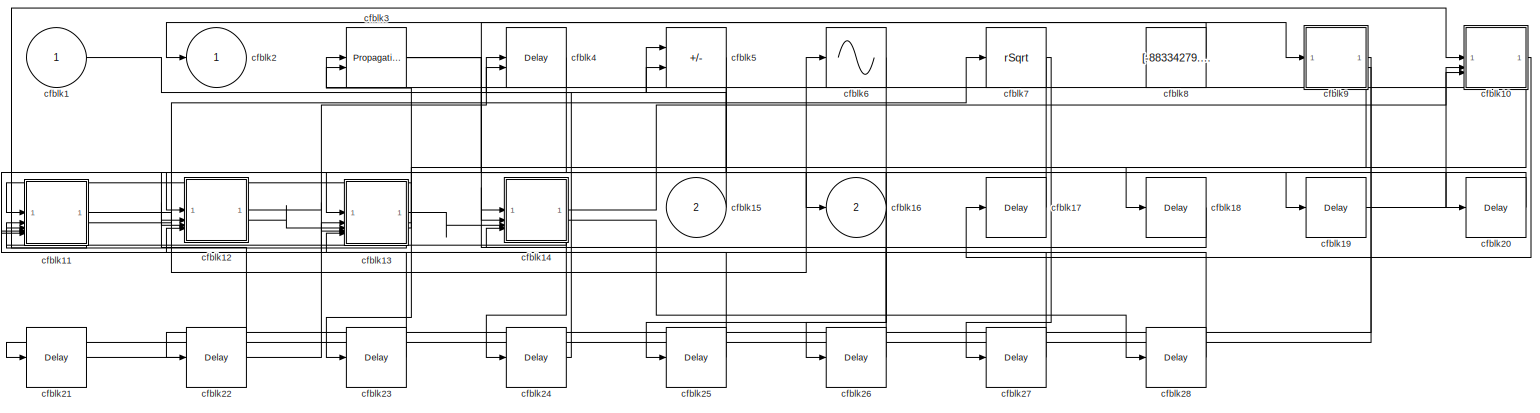
[diagram: cfblk39 - part 1/1, most of the canvas]
BLOCK [SubSystem] cfblk39
BLOCK [Inport] cfblk39/cfblk1
BLOCK [SubSystem] cfblk39/cfblk10
BLOCK [Inport] cfblk39/cfblk10/cfblk1
BLOCK [Constant] cfblk39/cfblk10/cfblk10
  SampleTime = 1
  Value = [-430199746.707510]
BLOCK [Inport] cfblk39/cfblk10/cfblk11
  Port = 2
BLOCK [Inport] cfblk39/cfblk10/cfblk12
  Port = 3
BLOCK [Outport] cfblk39/cfblk10/cfblk13
  Port = 2
BLOCK [Outport] cfblk39/cfblk10/cfblk2
BLOCK [Delay] cfblk39/cfblk10/cfblk3
  DelayLengthSource = Input port
  InputPortMap = u0,p1
  SampleTime = 1
BLOCK [Sin] cfblk39/cfblk10/cfblk4
  SampleTime = 0
  TimeSource = Use external signal
BLOCK [Sum] cfblk39/cfblk10/cfblk5
  IconShape = rectangular
  Inputs = +
BLOCK [PermuteDimensions] cfblk39/cfblk10/cfblk6
BLOCK [Sum] cfblk39/cfblk10/cfblk7
  Inputs = |++
BLOCK [Product] cfblk39/cfblk10/cfblk8
  Inputs = **
BLOCK [Sum] cfblk39/cfblk10/cfblk9
  IconShape = rectangular
  Inputs = +-
BLOCK [SubSystem] cfblk39/cfblk11
BLOCK [Inport] cfblk39/cfblk11/cfblk1
BLOCK [Inport] cfblk39/cfblk11/cfblk10
  Port = 3
BLOCK [Inport] cfblk39/cfblk11/cfblk11
  Port = 4
BLOCK [Inport] cfblk39/cfblk11/cfblk12
  Port = 5
BLOCK [Outport] cfblk39/cfblk11/cfblk13
  Port = 2
BLOCK [Outport] cfblk39/cfblk11/cfblk14
  Port = 3
BLOCK [Outport] cfblk39/cfblk11/cfblk2
BLOCK [DiscreteStateSpace] cfblk39/cfblk11/cfblk3
BLOCK [DiscreteIntegrator] cfblk39/cfblk11/cfblk4
  ICPrevOutput = DiscIntNeverNeededParam
  ICPrevScaledInput = DiscIntNeverNeededParam
  InitialConditionSetting = Auto
BLOCK [Sin] cfblk39/cfblk11/cfblk5
  SampleTime = 0
  TimeSource = Use external signal
BLOCK [DotProduct] cfblk39/cfblk11/cfblk6
  OutDataTypeStr = Inherit: Inherit via internal rule
BLOCK [Constant] cfblk39/cfblk11/cfblk7
  SampleTime = 1
  Value = [-722446577.434283]
BLOCK [Constant] cfblk39/cfblk11/cfblk8
  SampleTime = 1
  Value = [-47518749.440726]
BLOCK [Inport] cfblk39/cfblk11/cfblk9
  Port = 2
BLOCK [SubSystem] cfblk39/cfblk12
BLOCK [Inport] cfblk39/cfblk12/cfblk1
BLOCK [Inport] cfblk39/cfblk12/cfblk10
  Port = 2
BLOCK [Inport] cfblk39/cfblk12/cfblk11
  Port = 3
BLOCK [Inport] cfblk39/cfblk12/cfblk12
  Port = 4
BLOCK [Outport] cfblk39/cfblk12/cfblk13
  Port = 2
BLOCK [Delay] cfblk39/cfblk12/cfblk14
  InputPortMap = u0
  SampleTime = 1
BLOCK [Outport] cfblk39/cfblk12/cfblk2
BLOCK [Reference] cfblk39/cfblk12/cfblk3  REF=simulink/Discrete/Difference
  SourceBlock = simulink/Discrete/Difference
  SourceType = Difference
BLOCK [DiscreteZeroPole] cfblk39/cfblk12/cfblk4
  Gain = 1
  Poles = [0 0.5]
BLOCK [Delay] cfblk39/cfblk12/cfblk5
  InputPortMap = u0,e6
  SampleTime = 1
  ShowEnablePort = on
BLOCK [Gain] cfblk39/cfblk12/cfblk6
  Gain = [-375453854.574921]
BLOCK [Abs] cfblk39/cfblk12/cfblk7
  SaturateOnIntegerOverflow = off
BLOCK [Constant] cfblk39/cfblk12/cfblk8
  SampleTime = 1
  Value = [309716630.147981]
BLOCK [Constant] cfblk39/cfblk12/cfblk9
  SampleTime = 1
  Value = [-168676981.693167]
BLOCK [SubSystem] cfblk39/cfblk13
BLOCK [Inport] cfblk39/cfblk13/cfblk1
BLOCK [Signum] cfblk39/cfblk13/cfblk10
BLOCK [Constant] cfblk39/cfblk13/cfblk11
  SampleTime = 1
  Value = [197347955.556073]
BLOCK [Inport] cfblk39/cfblk13/cfblk12
  Port = 2
BLOCK [Inport] cfblk39/cfblk13/cfblk13
  Port = 3
BLOCK [Inport] cfblk39/cfblk13/cfblk14
  Port = 4
BLOCK [Inport] cfblk39/cfblk13/cfblk15
  Port = 5
BLOCK [Outport] cfblk39/cfblk13/cfblk16
  Port = 2
BLOCK [Outport] cfblk39/cfblk13/cfblk17
  Port = 3
BLOCK [Outport] cfblk39/cfblk13/cfblk2
BLOCK [DiscreteStateSpace] cfblk39/cfblk13/cfblk3
BLOCK [Delay] cfblk39/cfblk13/cfblk4
  DelayLengthSource = Input port
  InputPortMap = u0,p1
  SampleTime = 1
BLOCK [Reference] cfblk39/cfblk13/cfblk5  REF=simulink/Discrete/Transfer Fcn
First Order
  SourceBlock = simulink/Discrete/Transfer Fcn\nFirst Order
  SourceType = First Order Transfer Fcn
BLOCK [DiscreteFilter] cfblk39/cfblk13/cfblk6
  InputPortMap = u0
  SampleTime = 1
BLOCK [UnitDelay] cfblk39/cfblk13/cfblk7
  HasFrameUpgradeWarning = on
BLOCK [DiscreteIntegrator] cfblk39/cfblk13/cfblk8
  ICPrevOutput = DiscIntNeverNeededParam
  ICPrevScaledInput = DiscIntNeverNeededParam
  InitialConditionSetting = Auto
BLOCK [Math] cfblk39/cfblk13/cfblk9
  Operator = log10
BLOCK [SubSystem] cfblk39/cfblk14
BLOCK [Inport] cfblk39/cfblk14/cfblk1
BLOCK [Inport] cfblk39/cfblk14/cfblk10
  Port = 4
BLOCK [Outport] cfblk39/cfblk14/cfblk11
  Port = 2
BLOCK [Outport] cfblk39/cfblk14/cfblk2
BLOCK [Reference] cfblk39/cfblk14/cfblk3  REF=simulink/Discrete/Tapped Delay
  SourceBlock = simulink/Discrete/Tapped Delay
  SourceType = Tapped Delay Line
BLOCK [Product] cfblk39/cfblk14/cfblk4
  Inputs = **
BLOCK [Constant] cfblk39/cfblk14/cfblk5
  SampleTime = 1
  Value = [-298102019.536058]
BLOCK [Constant] cfblk39/cfblk14/cfblk6
  SampleTime = 1
  Value = [394898119.156315]
BLOCK [Constant] cfblk39/cfblk14/cfblk7
  SampleTime = 1
  Value = [-946998443.364874]
BLOCK [Inport] cfblk39/cfblk14/cfblk8
  Port = 2
BLOCK [Inport] cfblk39/cfblk14/cfblk9
  Port = 3
BLOCK [Inport] cfblk39/cfblk15
  Port = 2
BLOCK [Outport] cfblk39/cfblk16
  Port = 2
BLOCK [Delay] cfblk39/cfblk17
  InputPortMap = u0
  SampleTime = 1
BLOCK [Delay] cfblk39/cfblk18
  InputPortMap = u0
  SampleTime = 1
BLOCK [Delay] cfblk39/cfblk19
  InputPortMap = u0
  SampleTime = 1
BLOCK [Outport] cfblk39/cfblk2
BLOCK [Delay] cfblk39/cfblk20
  InputPortMap = u0
  SampleTime = 1
BLOCK [Delay] cfblk39/cfblk21
  InputPortMap = u0
  SampleTime = 1
BLOCK [Delay] cfblk39/cfblk22
  InputPortMap = u0
  SampleTime = 1
BLOCK [Delay] cfblk39/cfblk23
  InputPortMap = u0
  SampleTime = 1
BLOCK [Delay] cfblk39/cfblk24
  InputPortMap = u0
  SampleTime = 1
BLOCK [Delay] cfblk39/cfblk25
  InputPortMap = u0
  SampleTime = 1
BLOCK [Delay] cfblk39/cfblk26
  InputPortMap = u0
  SampleTime = 1
BLOCK [Delay] cfblk39/cfblk27
  InputPortMap = u0
  SampleTime = 1
BLOCK [Delay] cfblk39/cfblk28
  InputPortMap = u0
  SampleTime = 1
BLOCK [PropagationDelay] cfblk39/cfblk3
  SampleTime = 1
BLOCK [Delay] cfblk39/cfblk4
  InputPortMap = u0,e6
  SampleTime = 1
  ShowEnablePort = on
BLOCK [Sum] cfblk39/cfblk5
  IconShape = rectangular
  Inputs = +-
BLOCK [Sin] cfblk39/cfblk6
  SampleTime = 0
  TimeSource = Use external signal
BLOCK [Sqrt] cfblk39/cfblk7
  AlgorithmType = Newton-Raphson
  Operator = rSqrt
BLOCK [Constant] cfblk39/cfblk8
  SampleTime = 1
  Value = [-88334279.026382]
BLOCK [SubSystem] cfblk39/cfblk9
BLOCK [Inport] cfblk39/cfblk9/cfblk1
BLOCK [Sum] cfblk39/cfblk9/cfblk10
  IconShape = rectangular
  Inputs = +
BLOCK [Sin] cfblk39/cfblk9/cfblk11
  SampleTime = 0
  TimeSource = Use external signal
BLOCK [Sqrt] cfblk39/cfblk9/cfblk12
  AlgorithmType = Newton-Raphson
  Operator = rSqrt
BLOCK [Sqrt] cfblk39/cfblk9/cfblk13
  AlgorithmType = Newton-Raphson
  Operator = rSqrt
BLOCK [Reshape] cfblk39/cfblk9/cfblk14
BLOCK [Outport] cfblk39/cfblk9/cfblk15
  Port = 2
BLOCK [Outport] cfblk39/cfblk9/cfblk16
  Port = 3
BLOCK [Delay] cfblk39/cfblk9/cfblk17
  InputPortMap = u0
  SampleTime = 1
BLOCK [Delay] cfblk39/cfblk9/cfblk18
  InputPortMap = u0
  SampleTime = 1
BLOCK [Outport] cfblk39/cfblk9/cfblk2
BLOCK [Reference] cfblk39/cfblk9/cfblk3  REF=simulink/Discrete/Transfer Fcn
Lead or Lag
  SourceBlock = simulink/Discrete/Transfer Fcn\nLead or Lag
  SourceType = Lead or Lag Compensator
BLOCK [DiscreteFilter] cfblk39/cfblk9/cfblk4
  InputPortMap = u0
  SampleTime = 1
BLOCK [DiscreteFir] cfblk39/cfblk9/cfblk5
  InputPortMap = u0
  OutputPortMap = o0
  SampleTime = 1
BLOCK [DiscreteZeroPole] cfblk39/cfblk9/cfblk6
  Gain = 1
  Poles = [0 0.5]
BLOCK [Sum] cfblk39/cfblk9/cfblk7
  IconShape = rectangular
  Inputs = --
BLOCK [Sqrt] cfblk39/cfblk9/cfblk8
  AlgorithmType = Newton-Raphson
  Operator = rSqrt
BLOCK [PermuteDimensions] cfblk39/cfblk9/cfblk9
BLOCK [Delay] cfblk4
  InputPortMap = u0
  SampleTime = 1
BLOCK [SubSystem] cfblk40
BLOCK [Inport] cfblk40/cfblk1
BLOCK [Inport] cfblk40/cfblk10
  Port = 3
BLOCK [SubSystem] cfblk40/cfblk11
  TreatAsAtomicUnit = on
BLOCK [ActionPort] cfblk40/cfblk11/Action Port
  ActionPortLabel = if(u1 >= 0)
BLOCK [Inport] cfblk40/cfblk11/cfblk1
BLOCK [Constant] cfblk40/cfblk11/cfblk10
  SampleTime = 1
  Value = [-596403052.275177]
BLOCK [Outport] cfblk40/cfblk11/cfblk11
  Port = 2
BLOCK [Delay] cfblk40/cfblk11/cfblk12
  InputPortMap = u0
BLOCK [Outport] cfblk40/cfblk11/cfblk2
BLOCK [DiscreteZeroPole] cfblk40/cfblk11/cfblk3
  Gain = 1
  Poles = [0 0.5]
  SampleTime = -1
BLOCK [DiscreteTransferFcn] cfblk40/cfblk11/cfblk4
  InputPortMap = u0
BLOCK [DiscreteTransferFcn] cfblk40/cfblk11/cfblk5
  InputPortMap = u0
BLOCK [Sum] cfblk40/cfblk11/cfblk6
  IconShape = rectangular
BLOCK [UnaryMinus] cfblk40/cfblk11/cfblk7
BLOCK [Sum] cfblk40/cfblk11/cfblk8
  Inputs = |++
BLOCK [MinMax] cfblk40/cfblk11/cfblk9
  Function = max
  Inputs = 3
BLOCK [SubSystem] cfblk40/cfblk12
  TreatAsAtomicUnit = on
BLOCK [ActionPort] cfblk40/cfblk12/Action Port
  ActionPortLabel = else
BLOCK [Inport] cfblk40/cfblk12/cfblk1
BLOCK [Outport] cfblk40/cfblk12/cfblk2
BLOCK [Product] cfblk40/cfblk12/cfblk3
  Inputs = **
BLOCK [Sum] cfblk40/cfblk12/cfblk4
  IconShape = rectangular
  Inputs = +
BLOCK [Inport] cfblk40/cfblk12/cfblk5
  Port = 2
BLOCK [Outport] cfblk40/cfblk12/cfblk6
  Port = 2
BLOCK [Outport] cfblk40/cfblk12/cfblk7
  Port = 3
BLOCK [Delay] cfblk40/cfblk13
  InputPortMap = u0
  SampleTime = 1
BLOCK [Delay] cfblk40/cfblk14
  InputPortMap = u0
  SampleTime = 1
BLOCK [Delay] cfblk40/cfblk15
  InputPortMap = u0
  SampleTime = 1
BLOCK [Delay] cfblk40/cfblk16
  InputPortMap = u0
  SampleTime = 1
BLOCK [Outport] cfblk40/cfblk2
BLOCK [Sqrt] cfblk40/cfblk3
BLOCK [UnaryMinus] cfblk40/cfblk4
BLOCK [Sum] cfblk40/cfblk5
  IconShape = rectangular
  Inputs = +-
BLOCK [SubSystem] cfblk40/cfblk6
BLOCK [Inport] cfblk40/cfblk6/cfblk1
BLOCK [Outport] cfblk40/cfblk6/cfblk2
BLOCK [ComplexToMagnitudeAngle] cfblk40/cfblk6/cfblk3
BLOCK [Constant] cfblk40/cfblk6/cfblk4
  SampleTime = 1
  Value = [953994063.598649]
BLOCK [Inport] cfblk40/cfblk6/cfblk5
  Port = 2
BLOCK [Inport] cfblk40/cfblk6/cfblk6
  Port = 3
BLOCK [Outport] cfblk40/cfblk6/cfblk7
  Port = 2
BLOCK [Outport] cfblk40/cfblk6/cfblk8
  Port = 3
BLOCK [SubSystem] cfblk40/cfblk7
BLOCK [Inport] cfblk40/cfblk7/cfblk1
BLOCK [Signum] cfblk40/cfblk7/cfblk10
BLOCK [Constant] cfblk40/cfblk7/cfblk11
  SampleTime = 1
  Value = [242620350.389675]
BLOCK [Inport] cfblk40/cfblk7/cfblk12
  Port = 2
BLOCK [Inport] cfblk40/cfblk7/cfblk13
  Port = 3
BLOCK [Outport] cfblk40/cfblk7/cfblk14
  Port = 2
BLOCK [Outport] cfblk40/cfblk7/cfblk2
BLOCK [Reference] cfblk40/cfblk7/cfblk3  REF=simulink/Discrete/Transfer Fcn
First Order
  SourceBlock = simulink/Discrete/Transfer Fcn\nFirst Order
  SourceType = First Order Transfer Fcn
BLOCK [Reference] cfblk40/cfblk7/cfblk4  REF=simulink/Discrete/Transfer Fcn
First Order
  SourceBlock = simulink/Discrete/Transfer Fcn\nFirst Order
  SourceType = First Order Transfer Fcn
BLOCK [DiscreteFilter] cfblk40/cfblk7/cfblk5
  InputPortMap = u0
  SampleTime = 1
BLOCK [Reference] cfblk40/cfblk7/cfblk6  REF=slpidlib/PID Controller
  LibrarySourceBlock = simulink/Discrete/Discrete PID Controller
  SourceBlock = slpidlib/PID Controller
  SourceType = PID 1dof
BLOCK [Reference] cfblk40/cfblk7/cfblk7  REF=simulink/Discrete/Transfer Fcn
First Order
  SourceBlock = simulink/Discrete/Transfer Fcn\nFirst Order
  SourceType = First Order Transfer Fcn
BLOCK [Reshape] cfblk40/cfblk7/cfblk8
BLOCK [Reference] cfblk40/cfblk7/cfblk9  REF=simulink/Math
Operations/Slider
Gain
  SourceBlock = simulink/Math\nOperations/Slider\nGain
  SourceType = Slider Gain
BLOCK [If] cfblk40/cfblk8
  IfExpression = u1 >= 0
  SampleTime = 1
BLOCK [Inport] cfblk40/cfblk9
  Port = 2
BLOCK [SubSystem] cfblk41
BLOCK [Inport] cfblk41/cfblk1
BLOCK [SubSystem] cfblk41/cfblk10
BLOCK [Inport] cfblk41/cfblk10/cfblk1
BLOCK [Outport] cfblk41/cfblk10/cfblk2
BLOCK [Reference] cfblk41/cfblk10/cfblk3  REF=simulink/Discrete/Transfer Fcn
Real Zero
  SourceBlock = simulink/Discrete/Transfer Fcn\nReal Zero
  SourceType = Transfer Fcn Real Zero
BLOCK [DiscreteStateSpace] cfblk41/cfblk10/cfblk4
BLOCK [Delay] cfblk41/cfblk10/cfblk5
  DelayLengthSource = Input port
  InputPortMap = u0,p1
  SampleTime = 1
BLOCK [Abs] cfblk41/cfblk10/cfblk6
  SaturateOnIntegerOverflow = off
BLOCK [UnaryMinus] cfblk41/cfblk10/cfblk7
BLOCK [Product] cfblk41/cfblk10/cfblk8
BLOCK [Delay] cfblk41/cfblk10/cfblk9
  InputPortMap = u0
  SampleTime = 1
BLOCK [SubSystem] cfblk41/cfblk11
BLOCK [Inport] cfblk41/cfblk11/cfblk1
BLOCK [Outport] cfblk41/cfblk11/cfblk10
  Port = 2
BLOCK [Outport] cfblk41/cfblk11/cfblk11
  Port = 3
BLOCK [Outport] cfblk41/cfblk11/cfblk2
BLOCK [Reference] cfblk41/cfblk11/cfblk3  REF=slpidlib/PID Controller (2DOF)
  LibrarySourceBlock = simulink/Discrete/Discrete PID Controller (2DOF)
  SourceBlock = slpidlib/PID Controller (2DOF)
  SourceType = PID 2dof
BLOCK [Reshape] cfblk41/cfblk11/cfblk4
BLOCK [Constant] cfblk41/cfblk11/cfblk5
  SampleTime = 1
  Value = [701087735.147808]
BLOCK [Constant] cfblk41/cfblk11/cfblk6
  SampleTime = 1
  Value = [-631544403.551542]
BLOCK [Constant] cfblk41/cfblk11/cfblk7
  SampleTime = 1
  Value = [75567617.252760]
BLOCK [Inport] cfblk41/cfblk11/cfblk8
  Port = 2
BLOCK [Inport] cfblk41/cfblk11/cfblk9
  Port = 3
BLOCK [Inport] cfblk41/cfblk12
  Port = 2
BLOCK [Inport] cfblk41/cfblk13
  Port = 3
BLOCK [Inport] cfblk41/cfblk14
  Port = 4
BLOCK [Inport] cfblk41/cfblk15
  Port = 5
BLOCK [Inport] cfblk41/cfblk16
  Port = 6
BLOCK [Inport] cfblk41/cfblk17
  Port = 7
BLOCK [Outport] cfblk41/cfblk2
BLOCK [Reference] cfblk41/cfblk3  REF=slpidlib/PID Controller
  LibrarySourceBlock = simulink/Discrete/Discrete PID Controller
  SourceBlock = slpidlib/PID Controller
  SourceType = PID 1dof
BLOCK [Reference] cfblk41/cfblk4  REF=simulink/Discrete/Difference
  SourceBlock = simulink/Discrete/Difference
  SourceType = Difference
BLOCK [DiscreteZeroPole] cfblk41/cfblk5
  Gain = 1
  Poles = [0 0.5]
BLOCK [DiscreteIntegrator] cfblk41/cfblk6
  ICPrevOutput = DiscIntNeverNeededParam
  ICPrevScaledInput = DiscIntNeverNeededParam
  InitialConditionSetting = Auto
BLOCK [Reference] cfblk41/cfblk7  REF=simulink/Discrete/Transfer Fcn
Real Zero
  SourceBlock = simulink/Discrete/Transfer Fcn\nReal Zero
  SourceType = Transfer Fcn Real Zero
BLOCK [Reshape] cfblk41/cfblk8
BLOCK [Constant] cfblk41/cfblk9
  SampleTime = 1
  Value = [-595215380.457802]
BLOCK [If] cfblk42
  IfExpression = u1 >= 0
  SampleTime = 1
BLOCK [SubSystem] cfblk43
  TreatAsAtomicUnit = on
BLOCK [ActionPort] cfblk43/Action Port
  ActionPortLabel = if(u1 >= 0)
BLOCK [Inport] cfblk43/cfblk1
BLOCK [Outport] cfblk43/cfblk2
BLOCK [Trigonometry] cfblk43/cfblk3
BLOCK [Gain] cfblk43/cfblk4
  Gain = [-254919736.976658]
BLOCK [SubSystem] cfblk43/cfblk5
BLOCK [Inport] cfblk43/cfblk5/cfblk1
BLOCK [Constant] cfblk43/cfblk5/cfblk10
  SampleTime = 1
  Value = [-994842037.182122]
BLOCK [Inport] cfblk43/cfblk5/cfblk11
  Port = 2
BLOCK [Outport] cfblk43/cfblk5/cfblk12
  Port = 2
BLOCK [Outport] cfblk43/cfblk5/cfblk13
  Port = 3
BLOCK [Delay] cfblk43/cfblk5/cfblk14
  InputPortMap = u0
BLOCK [Outport] cfblk43/cfblk5/cfblk2
BLOCK [DiscreteIntegrator] cfblk43/cfblk5/cfblk3
  ICPrevOutput = DiscIntNeverNeededParam
  ICPrevScaledInput = DiscIntNeverNeededParam
  InitialConditionSetting = Auto
  SampleTime = -1
BLOCK [DiscreteFilter] cfblk43/cfblk5/cfblk4
  InputPortMap = u0
BLOCK [Sum] cfblk43/cfblk5/cfblk5
  IconShape = rectangular
  Inputs = -+
BLOCK [Sum] cfblk43/cfblk5/cfblk6
  IconShape = rectangular
BLOCK [MinMax] cfblk43/cfblk5/cfblk7
  Inputs = 2
BLOCK [Product] cfblk43/cfblk5/cfblk8
  Inputs = *
BLOCK [Constant] cfblk43/cfblk5/cfblk9
  SampleTime = 1
  Value = [645096293.018452]
BLOCK [SubSystem] cfblk43/cfblk6
BLOCK [Inport] cfblk43/cfblk6/cfblk1
BLOCK [Outport] cfblk43/cfblk6/cfblk2
BLOCK [DiscreteIntegrator] cfblk43/cfblk6/cfblk3
  ICPrevOutput = DiscIntNeverNeededParam
  ICPrevScaledInput = DiscIntNeverNeededParam
  InitialConditionSetting = Auto
  SampleTime = -1
BLOCK [ComplexToRealImag] cfblk43/cfblk6/cfblk4
BLOCK [Reshape] cfblk43/cfblk6/cfblk5
BLOCK [Constant] cfblk43/cfblk6/cfblk6
  SampleTime = 1
  Value = [740463419.511785]
BLOCK [Outport] cfblk43/cfblk6/cfblk7
  Port = 2
BLOCK [Outport] cfblk43/cfblk7
  Port = 2
BLOCK [Delay] cfblk43/cfblk8
  InputPortMap = u0
BLOCK [Delay] cfblk43/cfblk9
  InputPortMap = u0
BLOCK [SubSystem] cfblk44
  TreatAsAtomicUnit = on
BLOCK [ActionPort] cfblk44/Action Port
  ActionPortLabel = else
BLOCK [Inport] cfblk44/cfblk1
BLOCK [Outport] cfblk44/cfblk2
BLOCK [Delay] cfblk44/cfblk3
  InputPortMap = u0,e6
  ShowEnablePort = on
BLOCK [DiscreteStateSpace] cfblk44/cfblk4
  SampleTime = -1
BLOCK [UnaryMinus] cfblk44/cfblk5
BLOCK [Constant] cfblk44/cfblk6
  SampleTime = 1
  Value = [-662447500.319375]
BLOCK [Constant] cfblk44/cfblk7
  SampleTime = 1
  Value = [85355849.666719]
BLOCK [SubSystem] cfblk44/cfblk8
BLOCK [Inport] cfblk44/cfblk8/cfblk1
BLOCK [Sum] cfblk44/cfblk8/cfblk10
  IconShape = rectangular
  Inputs = +
BLOCK [Constant] cfblk44/cfblk8/cfblk11
  SampleTime = 1
  Value = [-684850580.819652]
BLOCK [Inport] cfblk44/cfblk8/cfblk12
  Port = 2
BLOCK [Inport] cfblk44/cfblk8/cfblk13
  Port = 3
BLOCK [Inport] cfblk44/cfblk8/cfblk14
  Port = 4
BLOCK [Delay] cfblk44/cfblk8/cfblk15
  InputPortMap = u0
BLOCK [Outport] cfblk44/cfblk8/cfblk2
BLOCK [DiscreteIntegrator] cfblk44/cfblk8/cfblk3
  ICPrevOutput = DiscIntNeverNeededParam
  ICPrevScaledInput = DiscIntNeverNeededParam
  InitialConditionSetting = Auto
  SampleTime = -1
BLOCK [Sqrt] cfblk44/cfblk8/cfblk4
BLOCK [Rounding] cfblk44/cfblk8/cfblk5
BLOCK [Sum] cfblk44/cfblk8/cfblk6
  IconShape = rectangular
  Inputs = +
BLOCK [Assignment] cfblk44/cfblk8/cfblk7
  DiagnosticForDimensions = Warning
  IndexOptions = Index vector (dialog)
  Indices = 1
  OutputSizes = 1
BLOCK [Sqrt] cfblk44/cfblk8/cfblk8
  AlgorithmType = Newton-Raphson
  Operator = rSqrt
BLOCK [Sum] cfblk44/cfblk8/cfblk9
  IconShape = rectangular
  Inputs = +-
BLOCK [Inport] cfblk44/cfblk9
  Port = 2
BLOCK [Delay] cfblk45
  InputPortMap = u0
  SampleTime = 1
BLOCK [Delay] cfblk46
  InputPortMap = u0
  SampleTime = 1
BLOCK [Delay] cfblk47
  InputPortMap = u0
  SampleTime = 1
BLOCK [Delay] cfblk48
  InputPortMap = u0
  SampleTime = 1
BLOCK [Delay] cfblk49
  InputPortMap = u0
  SampleTime = 1
BLOCK [Reference] cfblk5  REF=simulink/Discrete/Transfer Fcn
Real Zero
  SourceBlock = simulink/Discrete/Transfer Fcn\nReal Zero
  SourceType = Transfer Fcn Real Zero
BLOCK [Delay] cfblk50
  InputPortMap = u0
  SampleTime = 1
BLOCK [Delay] cfblk51
  InputPortMap = u0
  SampleTime = 1
BLOCK [Delay] cfblk52
  InputPortMap = u0
  SampleTime = 1
BLOCK [DataTypeConversion] cfblk53
  RndMeth = Floor
  SaturateOnIntegerOverflow = off
BLOCK [Reference] cfblk6  REF=simulink/Discrete/Transfer Fcn
First Order
  SourceBlock = simulink/Discrete/Transfer Fcn\nFirst Order
  SourceType = First Order Transfer Fcn
BLOCK [Reference] cfblk7  REF=simulink/Discrete/Transfer Fcn
Real Zero
  SourceBlock = simulink/Discrete/Transfer Fcn\nReal Zero
  SourceType = Transfer Fcn Real Zero
BLOCK [Reference] cfblk8  REF=slpidlib/PID Controller
  LibrarySourceBlock = simulink/Discrete/Discrete PID Controller
  SourceBlock = slpidlib/PID Controller
  SourceType = PID 1dof
BLOCK [Trigonometry] cfblk9
LINE cfblk10:1 -> cfblk47:1
NET cfblk11:1 -> cfblk41:7, cfblk45:1
LINE cfblk12:1 -> cfblk24:1
LINE cfblk13:1 -> cfblk15:1
LINE cfblk14:1 -> cfblk6:1
LINE cfblk15:1 -> cfblk11:1
LINE cfblk1:1 -> cfblk4:1
LINE cfblk25:1 -> cfblk53:1
LINE cfblk26:1 -> cfblk17:1
LINE cfblk27:1 -> cfblk16:1
NET cfblk29:1 -> cfblk12:1, cfblk41:6
NET cfblk2:1 -> cfblk41:3, cfblk8:1
NET cfblk30:1 -> cfblk37:1, cfblk44:1
LINE cfblk31:1 -> cfblk34:1
NET cfblk32:1 -> cfblk36:2, cfblk41:1
LINE cfblk33/cfblk10:1 -> cfblk33/cfblk8:1
LINE cfblk33/cfblk11:1 -> cfblk33/cfblk8:2
LINE cfblk33/cfblk12:1 -> cfblk33/cfblk7:2
LINE cfblk33/cfblk13:1 -> cfblk33/cfblk8:4
LINE cfblk33/cfblk14:1 -> cfblk33/cfblk7:3
LINE cfblk33/cfblk15:1 -> cfblk33/cfblk7:4
LINE cfblk33/cfblk1:1 -> cfblk33/cfblk7:1
LINE cfblk33/cfblk3:1 -> cfblk33/cfblk4:1
LINE cfblk33/cfblk4:1 -> cfblk33/cfblk9:1
LINE cfblk33/cfblk5/cfblk11:1 -> cfblk33/cfblk5/cfblk4:1
NET cfblk33/cfblk5/cfblk1:1 -> cfblk33/cfblk5/cfblk5:2, cfblk33/cfblk5/cfblk6:1
LINE cfblk33/cfblk5/cfblk3:1 -> cfblk33/cfblk5/cfblk11:1
LINE cfblk33/cfblk5/cfblk4:1 -> cfblk33/cfblk5/cfblk3:2
NET cfblk33/cfblk5/cfblk5:1 -> cfblk33/cfblk5/cfblk10:1, cfblk33/cfblk5/cfblk4:2
NET cfblk33/cfblk5/cfblk6:1 -> cfblk33/cfblk5/cfblk2:1, cfblk33/cfblk5/cfblk5:1
LINE cfblk33/cfblk5/cfblk7:1 -> cfblk33/cfblk5/cfblk9:1
LINE cfblk33/cfblk5/cfblk8:1 -> cfblk33/cfblk5/cfblk3:1
LINE cfblk33/cfblk5:1 -> cfblk33/cfblk10:1
LINE cfblk33/cfblk5:2 -> cfblk33/cfblk11:1
NET cfblk33/cfblk5:3 -> cfblk33/cfblk12:1, cfblk33/cfblk13:1
LINE cfblk33/cfblk6/cfblk1:1 -> cfblk33/cfblk6/cfblk3:1
LINE cfblk33/cfblk6/cfblk3:1 -> cfblk33/cfblk6/cfblk6:2
LINE cfblk33/cfblk6/cfblk4:1 -> cfblk33/cfblk6/cfblk6:1
LINE cfblk33/cfblk6/cfblk5:1 -> cfblk33/cfblk6/cfblk2:1
LINE cfblk33/cfblk6/cfblk6:1 -> cfblk33/cfblk6/cfblk5:1
LINE cfblk33/cfblk6/cfblk7:1 -> cfblk33/cfblk6/cfblk4:1
NET cfblk33/cfblk6:1 -> cfblk33/cfblk2:1, cfblk33/cfblk3:1, cfblk33/cfblk5:2, cfblk33/cfblk8:3
LINE cfblk33/cfblk7/cfblk10:1 -> cfblk33/cfblk7/cfblk8:1
LINE cfblk33/cfblk7/cfblk11:1 -> cfblk33/cfblk7/cfblk10:1
LINE cfblk33/cfblk7/cfblk12:1 -> cfblk33/cfblk7/cfblk4:1
LINE cfblk33/cfblk7/cfblk13:1 -> cfblk33/cfblk7/cfblk11:1
LINE cfblk33/cfblk7/cfblk14:1 -> cfblk33/cfblk7/cfblk2:1
LINE cfblk33/cfblk7/cfblk15:1 -> cfblk33/cfblk7/cfblk8:2
LINE cfblk33/cfblk7/cfblk16:1 -> cfblk33/cfblk7/cfblk6:1
LINE cfblk33/cfblk7/cfblk17:1 -> cfblk33/cfblk7/cfblk7:2
LINE cfblk33/cfblk7/cfblk1:1 -> cfblk33/cfblk7/cfblk3:1
LINE cfblk33/cfblk7/cfblk3:1 -> cfblk33/cfblk7/cfblk7:3
LINE cfblk33/cfblk7/cfblk4:1 -> cfblk33/cfblk7/cfblk17:1
LINE cfblk33/cfblk7/cfblk5:1 -> cfblk33/cfblk7/cfblk7:1
LINE cfblk33/cfblk7/cfblk6:1 -> cfblk33/cfblk7/cfblk9:1
LINE cfblk33/cfblk7/cfblk7:1 -> cfblk33/cfblk7/cfblk4:2
LINE cfblk33/cfblk7/cfblk8:1 -> cfblk33/cfblk7/cfblk5:1
LINE cfblk33/cfblk7/cfblk9:1 -> cfblk33/cfblk7/cfblk11:2
LINE cfblk33/cfblk7:1 -> cfblk33/cfblk6:1
LINE cfblk33/cfblk8/cfblk11:1 -> cfblk33/cfblk8/cfblk2:1
LINE cfblk33/cfblk8/cfblk12:1 -> cfblk33/cfblk8/cfblk4:2
LINE cfblk33/cfblk8/cfblk13:1 -> cfblk33/cfblk8/cfblk8:1
LINE cfblk33/cfblk8/cfblk14:1 -> cfblk33/cfblk8/cfblk3:1
LINE cfblk33/cfblk8/cfblk1:1 -> cfblk33/cfblk8/cfblk4:1
LINE cfblk33/cfblk8/cfblk3:1 -> cfblk33/cfblk8/cfblk6:1
LINE cfblk33/cfblk8/cfblk4:1 -> cfblk33/cfblk8/cfblk7:1
LINE cfblk33/cfblk8/cfblk6:1 -> cfblk33/cfblk8/cfblk9:1
LINE cfblk33/cfblk8/cfblk7:1 -> cfblk33/cfblk8/cfblk5:1
LINE cfblk33/cfblk8/cfblk8:1 -> cfblk33/cfblk8/cfblk15:1
LINE cfblk33/cfblk8/cfblk9:1 -> cfblk33/cfblk8/cfblk8:2
LINE cfblk33/cfblk8:1 -> cfblk33/cfblk5:1
NET cfblk33/cfblk8:2 -> cfblk33/cfblk14:1, cfblk33/cfblk15:1
LINE cfblk33:1 -> cfblk1:1
LINE cfblk33:2 -> cfblk39:2
LINE cfblk34/cfblk10:1 -> cfblk34/cfblk12:ifaction
LINE cfblk34/cfblk10:2 -> cfblk34/cfblk13:ifaction
LINE cfblk34/cfblk11:1 -> cfblk34/cfblk4:1
LINE cfblk34/cfblk12/cfblk13:1 -> cfblk34/cfblk12/cfblk3:2
LINE cfblk34/cfblk12/cfblk1:1 -> cfblk34/cfblk12/cfblk12:1
LINE cfblk34/cfblk12/cfblk3:1 -> cfblk34/cfblk12/cfblk4:1
LINE cfblk34/cfblk12/cfblk4:1 -> cfblk34/cfblk12/cfblk13:1
LINE cfblk34/cfblk12/cfblk5:1 -> cfblk34/cfblk12/cfblk3:1
LINE cfblk34/cfblk12/cfblk6:1 -> cfblk34/cfblk12/cfblk5:1
LINE cfblk34/cfblk12/cfblk7:1 -> cfblk34/cfblk12/cfblk6:1
LINE cfblk34/cfblk12/cfblk9:1 -> cfblk34/cfblk12/cfblk2:1
LINE cfblk34/cfblk12:1 -> cfblk34/cfblk14:1
LINE cfblk34/cfblk12:2 -> cfblk34/cfblk13:3
LINE cfblk34/cfblk13/cfblk10:1 -> cfblk34/cfblk13/cfblk5:2
LINE cfblk34/cfblk13/cfblk11:1 -> cfblk34/cfblk13/cfblk7:1
LINE cfblk34/cfblk13/cfblk12:1 -> cfblk34/cfblk13/cfblk8:1
LINE cfblk34/cfblk13/cfblk13:1 -> cfblk34/cfblk13/cfblk6:1
LINE cfblk34/cfblk13/cfblk1:1 -> cfblk34/cfblk13/cfblk15:1
LINE cfblk34/cfblk13/cfblk3:1 -> cfblk34/cfblk13/cfblk5:1
LINE cfblk34/cfblk13/cfblk4:1 -> cfblk34/cfblk13/cfblk3:1
LINE cfblk34/cfblk13/cfblk5:1 -> cfblk34/cfblk13/cfblk6:2
LINE cfblk34/cfblk13/cfblk6:1 -> cfblk34/cfblk13/cfblk8:2
LINE cfblk34/cfblk13/cfblk7:1 -> cfblk34/cfblk13/cfblk14:1
LINE cfblk34/cfblk13/cfblk8:1 -> cfblk34/cfblk13/cfblk2:1
LINE cfblk34/cfblk13/cfblk9:1 -> cfblk34/cfblk13/cfblk4:1
LINE cfblk34/cfblk13:1 -> cfblk34/cfblk15:1
LINE cfblk34/cfblk13:2 -> cfblk34/cfblk7:1
LINE cfblk34/cfblk13:3 -> cfblk34/cfblk20:1
LINE cfblk34/cfblk14:1 -> cfblk34/cfblk3:1
LINE cfblk34/cfblk15:1 -> cfblk34/cfblk3:3
LINE cfblk34/cfblk16:1 -> cfblk34/cfblk12:1
LINE cfblk34/cfblk17:1 -> cfblk34/cfblk13:2
LINE cfblk34/cfblk18:1 -> cfblk34/cfblk12:4
LINE cfblk34/cfblk19:1 -> cfblk34/cfblk13:5
LINE cfblk34/cfblk1:1 -> cfblk34/cfblk2:1
LINE cfblk34/cfblk20:1 -> cfblk34/cfblk9:2
LINE cfblk34/cfblk3:1 -> cfblk34/cfblk9:1
LINE cfblk34/cfblk4:1 -> cfblk34/cfblk13:1
LINE cfblk34/cfblk5:1 -> cfblk34/cfblk3:2
LINE cfblk34/cfblk6:1 -> cfblk34/cfblk8:1
LINE cfblk34/cfblk7/cfblk11:1 -> cfblk34/cfblk7/cfblk3:1
LINE cfblk34/cfblk7/cfblk1:1 -> cfblk34/cfblk7/cfblk6:1
NET cfblk34/cfblk7/cfblk3:1 -> cfblk34/cfblk7/cfblk10:1, cfblk34/cfblk7/cfblk5:1
LINE cfblk34/cfblk7/cfblk4:1 -> cfblk34/cfblk7/cfblk11:1
LINE cfblk34/cfblk7/cfblk5:1 -> cfblk34/cfblk7/cfblk4:1
NET cfblk34/cfblk7/cfblk6:1 -> cfblk34/cfblk7/cfblk2:1, cfblk34/cfblk7/cfblk9:1
LINE cfblk34/cfblk7/cfblk7:1 -> cfblk34/cfblk7/cfblk8:1
LINE cfblk34/cfblk7:1 -> cfblk34/cfblk16:1
LINE cfblk34/cfblk7:2 -> cfblk34/cfblk17:1
LINE cfblk34/cfblk7:3 -> cfblk34/cfblk18:1
LINE cfblk34/cfblk7:4 -> cfblk34/cfblk19:1
LINE cfblk34/cfblk8/cfblk11:1 -> cfblk34/cfblk8/cfblk8:1
LINE cfblk34/cfblk8/cfblk12:1 -> cfblk34/cfblk8/cfblk3:2
LINE cfblk34/cfblk8/cfblk1:1 -> cfblk34/cfblk8/cfblk3:1
NET cfblk34/cfblk8/cfblk3:1 -> cfblk34/cfblk8/cfblk6:1, cfblk34/cfblk8/cfblk7:1
LINE cfblk34/cfblk8/cfblk4:1 -> cfblk34/cfblk8/cfblk11:1
LINE cfblk34/cfblk8/cfblk5:1 -> cfblk34/cfblk8/cfblk10:1
NET cfblk34/cfblk8/cfblk6:1 -> cfblk34/cfblk8/cfblk12:1, cfblk34/cfblk8/cfblk9:1
NET cfblk34/cfblk8/cfblk7:1 -> cfblk34/cfblk8/cfblk2:1, cfblk34/cfblk8/cfblk5:1, cfblk34/cfblk8/cfblk8:2
LINE cfblk34/cfblk8/cfblk8:1 -> cfblk34/cfblk8/cfblk4:1
LINE cfblk34/cfblk8:1 -> cfblk34/cfblk10:1
LINE cfblk34/cfblk8:2 -> cfblk34/cfblk12:3
NET cfblk34/cfblk8:3 -> cfblk34/cfblk7:2, cfblk34/cfblk9:3
LINE cfblk34/cfblk9/cfblk10:1 -> cfblk34/cfblk9/cfblk4:1
LINE cfblk34/cfblk9/cfblk1:1 -> cfblk34/cfblk9/cfblk3:1
LINE cfblk34/cfblk9/cfblk3:1 -> cfblk34/cfblk9/cfblk9:1
LINE cfblk34/cfblk9/cfblk4:1 -> cfblk34/cfblk9/cfblk5:1
LINE cfblk34/cfblk9/cfblk5:1 -> cfblk34/cfblk9/cfblk10:1
LINE cfblk34/cfblk9/cfblk6:1 -> cfblk34/cfblk9/cfblk2:1
LINE cfblk34/cfblk9/cfblk7:1 -> cfblk34/cfblk9/cfblk8:1
LINE cfblk34/cfblk9:1 -> cfblk34/cfblk12:2
LINE cfblk34/cfblk9:2 -> cfblk34/cfblk13:4
LINE cfblk34/cfblk9:3 -> cfblk34/cfblk4:2
LINE cfblk34:1 -> cfblk42:1
LINE cfblk35/cfblk10/cfblk10:1 -> cfblk35/cfblk10/cfblk3:1
LINE cfblk35/cfblk10/cfblk11:1 -> cfblk35/cfblk10/cfblk4:1
LINE cfblk35/cfblk10/cfblk15:1 -> cfblk35/cfblk10/cfblk6:1
LINE cfblk35/cfblk10/cfblk1:1 -> cfblk35/cfblk10/cfblk5:1
LINE cfblk35/cfblk10/cfblk5:1 -> cfblk35/cfblk10/cfblk7:1
LINE cfblk35/cfblk10/cfblk6:1 -> cfblk35/cfblk10/cfblk5:2
LINE cfblk35/cfblk10/cfblk7:1 -> cfblk35/cfblk10/cfblk2:1
LINE cfblk35/cfblk10/cfblk8:1 -> cfblk35/cfblk10/cfblk3:2
LINE cfblk35/cfblk10:1 -> cfblk35/cfblk8:1
LINE cfblk35/cfblk11/cfblk10:1 -> cfblk35/cfblk11/cfblk2:1
LINE cfblk35/cfblk11/cfblk11:1 -> cfblk35/cfblk11/cfblk13:1
LINE cfblk35/cfblk11/cfblk11:2 -> cfblk35/cfblk11/cfblk7:2
LINE cfblk35/cfblk11/cfblk12:1 -> cfblk35/cfblk11/cfblk9:1
LINE cfblk35/cfblk11/cfblk13:1 -> cfblk35/cfblk11/cfblk4:1
LINE cfblk35/cfblk11/cfblk14:1 -> cfblk35/cfblk11/cfblk12:1
LINE cfblk35/cfblk11/cfblk15:1 -> cfblk35/cfblk11/cfblk7:1
LINE cfblk35/cfblk11/cfblk16:1 -> cfblk35/cfblk11/cfblk6:1
LINE cfblk35/cfblk11/cfblk17:1 -> cfblk35/cfblk11/cfblk3:1
LINE cfblk35/cfblk11/cfblk1:1 -> cfblk35/cfblk11/cfblk8:1
LINE cfblk35/cfblk11/cfblk3:1 -> cfblk35/cfblk11/cfblk12:2
LINE cfblk35/cfblk11/cfblk4:1 -> cfblk35/cfblk11/cfblk10:1
LINE cfblk35/cfblk11/cfblk6:1 -> cfblk35/cfblk11/cfblk11:1
LINE cfblk35/cfblk11/cfblk7:1 -> cfblk35/cfblk11/cfblk8:2
LINE cfblk35/cfblk11/cfblk8:1 -> cfblk35/cfblk11/cfblk5:1
NET cfblk35/cfblk11/cfblk9:1 -> cfblk35/cfblk11/cfblk17:1, cfblk35/cfblk11/cfblk5:2
NET cfblk35/cfblk11:1 -> cfblk35/cfblk10:7, cfblk35/cfblk2:1
LINE cfblk35/cfblk12:1 -> cfblk35/cfblk11:1
NET cfblk35/cfblk13:1 -> cfblk35/cfblk10:5, cfblk35/cfblk11:3
LINE cfblk35/cfblk14:1 -> cfblk35/cfblk10:2
LINE cfblk35/cfblk15:1 -> cfblk35/cfblk10:3
LINE cfblk35/cfblk16:1 -> cfblk35/cfblk3:1
LINE cfblk35/cfblk1:1 -> cfblk35/cfblk6:1
LINE cfblk35/cfblk3:1 -> cfblk35/cfblk5:1
LINE cfblk35/cfblk4:1 -> cfblk35/cfblk14:1
LINE cfblk35/cfblk5:1 -> cfblk35/cfblk7:1
NET cfblk35/cfblk6:1 -> cfblk35/cfblk10:6, cfblk35/cfblk11:2
NET cfblk35/cfblk7:1 -> cfblk35/cfblk10:4, cfblk35/cfblk16:1
LINE cfblk35/cfblk8:1 -> cfblk35/cfblk4:1
LINE cfblk35/cfblk8:2 -> cfblk35/cfblk15:1
LINE cfblk35/cfblk9:1 -> cfblk35/cfblk10:1
LINE cfblk35:1 -> cfblk20:1
LINE cfblk36/cfblk10/cfblk10:1 -> cfblk36/cfblk10/cfblk3:1
LINE cfblk36/cfblk10/cfblk1:1 -> cfblk36/cfblk10/cfblk7:1
NET cfblk36/cfblk10/cfblk3:1 -> cfblk36/cfblk10/cfblk5:1, cfblk36/cfblk10/cfblk9:1
LINE cfblk36/cfblk10/cfblk4:1 -> cfblk36/cfblk10/cfblk10:1
NET cfblk36/cfblk10/cfblk5:1 -> cfblk36/cfblk10/cfblk2:1, cfblk36/cfblk10/cfblk4:1, cfblk36/cfblk10/cfblk6:1, cfblk36/cfblk10/cfblk8:1
LINE cfblk36/cfblk10:1 -> cfblk36/cfblk7:1
LINE cfblk36/cfblk10:2 -> cfblk36/cfblk5:1
LINE cfblk36/cfblk10:3 -> cfblk36/cfblk3:2
LINE cfblk36/cfblk10:4 -> cfblk36/cfblk12:3
LINE cfblk36/cfblk10:5 -> cfblk36/cfblk12:5
LINE cfblk36/cfblk11/cfblk10:1 -> cfblk36/cfblk11/cfblk2:1
LINE cfblk36/cfblk11/cfblk11:1 -> cfblk36/cfblk11/cfblk8:1
LINE cfblk36/cfblk11/cfblk12:1 -> cfblk36/cfblk11/cfblk7:2
LINE cfblk36/cfblk11/cfblk14:1 -> cfblk36/cfblk11/cfblk3:1
LINE cfblk36/cfblk11/cfblk1:1 -> cfblk36/cfblk11/cfblk10:1
LINE cfblk36/cfblk11/cfblk3:1 -> cfblk36/cfblk11/cfblk7:1
LINE cfblk36/cfblk11/cfblk4:1 -> cfblk36/cfblk11/cfblk9:1
LINE cfblk36/cfblk11/cfblk5:1 -> cfblk36/cfblk11/cfblk14:1
LINE cfblk36/cfblk11/cfblk6:1 -> cfblk36/cfblk11/cfblk5:1
LINE cfblk36/cfblk11/cfblk7:1 -> cfblk36/cfblk11/cfblk6:1
LINE cfblk36/cfblk11/cfblk8:1 -> cfblk36/cfblk11/cfblk4:1
LINE cfblk36/cfblk11/cfblk9:1 -> cfblk36/cfblk11/cfblk13:1
LINE cfblk36/cfblk11:1 -> cfblk36/cfblk6:1
LINE cfblk36/cfblk11:2 -> cfblk36/cfblk7:2
LINE cfblk36/cfblk12/cfblk3:1 -> cfblk36/cfblk12/cfblk4:1
LINE cfblk36/cfblk12/cfblk5:1 -> cfblk36/cfblk12/cfblk3:1
LINE cfblk36/cfblk12/cfblk6:1 -> cfblk36/cfblk12/cfblk2:1
LINE cfblk36/cfblk12/cfblk7:1 -> cfblk36/cfblk12/cfblk4:2
LINE cfblk36/cfblk12:1 -> cfblk36/cfblk8:1
LINE cfblk36/cfblk13:1 -> cfblk36/cfblk3:1
LINE cfblk36/cfblk14:1 -> cfblk36/cfblk4:2
LINE cfblk36/cfblk15:1 -> cfblk36/cfblk12:2
LINE cfblk36/cfblk16:1 -> cfblk36/cfblk12:4
LINE cfblk36/cfblk1:1 -> cfblk36/cfblk10:1
LINE cfblk36/cfblk3:1 -> cfblk36/cfblk11:1
LINE cfblk36/cfblk4:1 -> cfblk36/cfblk5:2
LINE cfblk36/cfblk5:1 -> cfblk36/cfblk16:1
LINE cfblk36/cfblk6:1 -> cfblk36/cfblk2:1
LINE cfblk36/cfblk7:1 -> cfblk36/cfblk12:1
LINE cfblk36/cfblk8:1 -> cfblk36/cfblk4:1
LINE cfblk36/cfblk9:1 -> cfblk36/cfblk11:2
LINE cfblk36:1 -> cfblk13:2
LINE cfblk37/cfblk10/cfblk10:1 -> cfblk37/cfblk10/cfblk9:1
LINE cfblk37/cfblk10/cfblk11:1 -> cfblk37/cfblk10/cfblk3:1
LINE cfblk37/cfblk10/cfblk12:1 -> cfblk37/cfblk10/cfblk10:1
LINE cfblk37/cfblk10/cfblk13:1 -> cfblk37/cfblk10/cfblk7:1
LINE cfblk37/cfblk10/cfblk14:1 -> cfblk37/cfblk10/cfblk12:2
LINE cfblk37/cfblk10/cfblk15:1 -> cfblk37/cfblk10/cfblk5:1
LINE cfblk37/cfblk10/cfblk16:1 -> cfblk37/cfblk10/cfblk8:1
LINE cfblk37/cfblk10/cfblk1:1 -> cfblk37/cfblk10/cfblk4:1
LINE cfblk37/cfblk10/cfblk3:1 -> cfblk37/cfblk10/cfblk8:2
LINE cfblk37/cfblk10/cfblk4:1 -> cfblk37/cfblk10/cfblk2:1
LINE cfblk37/cfblk10/cfblk5:1 -> cfblk37/cfblk10/cfblk12:1
LINE cfblk37/cfblk10/cfblk6:1 -> cfblk37/cfblk10/cfblk11:1
LINE cfblk37/cfblk10/cfblk7:1 -> cfblk37/cfblk10/cfblk6:1
LINE cfblk37/cfblk10/cfblk9:1 -> cfblk37/cfblk10/cfblk7:2
LINE cfblk37/cfblk10:1 -> cfblk37/cfblk16:1
LINE cfblk37/cfblk11/cfblk10:1 -> cfblk37/cfblk11/cfblk9:1
LINE cfblk37/cfblk11/cfblk11:1 -> cfblk37/cfblk11/cfblk15:1
LINE cfblk37/cfblk11/cfblk12:1 -> cfblk37/cfblk11/cfblk20:1
NET cfblk37/cfblk11/cfblk13:1 -> cfblk37/cfblk11/cfblk5:1, cfblk37/cfblk11/cfblk8:1
NET cfblk37/cfblk11/cfblk14:1 -> cfblk37/cfblk11/cfblk18:1, cfblk37/cfblk11/cfblk19:1
LINE cfblk37/cfblk11/cfblk15:1 -> cfblk37/cfblk11/cfblk7:1
LINE cfblk37/cfblk11/cfblk16:1 -> cfblk37/cfblk11/cfblk17:1
LINE cfblk37/cfblk11/cfblk18:1 -> cfblk37/cfblk11/cfblk13:1
LINE cfblk37/cfblk11/cfblk19:1 -> cfblk37/cfblk11/cfblk3:1
LINE cfblk37/cfblk11/cfblk1:1 -> cfblk37/cfblk11/cfblk4:1
LINE cfblk37/cfblk11/cfblk20:1 -> cfblk37/cfblk11/cfblk7:2
LINE cfblk37/cfblk11/cfblk3:1 -> cfblk37/cfblk11/cfblk13:2
LINE cfblk37/cfblk11/cfblk4:1 -> cfblk37/cfblk11/cfblk2:1
LINE cfblk37/cfblk11/cfblk5:1 -> cfblk37/cfblk11/cfblk12:1
LINE cfblk37/cfblk11/cfblk6:1 -> cfblk37/cfblk11/cfblk11:1
LINE cfblk37/cfblk11/cfblk7:1 -> cfblk37/cfblk11/cfblk10:1
NET cfblk37/cfblk11/cfblk8:1 -> cfblk37/cfblk11/cfblk14:1, cfblk37/cfblk11/cfblk6:1
LINE cfblk37/cfblk11/cfblk9:1 -> cfblk37/cfblk11/cfblk12:2
LINE cfblk37/cfblk11:1 -> cfblk37/cfblk19:1
NET cfblk37/cfblk11:2 -> cfblk37/cfblk12:2, cfblk37/cfblk20:1, cfblk37/cfblk21:1
LINE cfblk37/cfblk12/cfblk10:1 -> cfblk37/cfblk12/cfblk9:1
LINE cfblk37/cfblk12/cfblk11:1 -> cfblk37/cfblk12/cfblk6:1
LINE cfblk37/cfblk12/cfblk12:1 -> cfblk37/cfblk12/cfblk4:1
LINE cfblk37/cfblk12/cfblk13:1 -> cfblk37/cfblk12/cfblk6:2
LINE cfblk37/cfblk12/cfblk14:1 -> cfblk37/cfblk12/cfblk11:1
LINE cfblk37/cfblk12/cfblk15:1 -> cfblk37/cfblk12/cfblk7:1
LINE cfblk37/cfblk12/cfblk16:1 -> cfblk37/cfblk12/cfblk13:1
LINE cfblk37/cfblk12/cfblk1:1 -> cfblk37/cfblk12/cfblk3:1
LINE cfblk37/cfblk12/cfblk3:1 -> cfblk37/cfblk12/cfblk10:1
LINE cfblk37/cfblk12/cfblk4:1 -> cfblk37/cfblk12/cfblk2:1
LINE cfblk37/cfblk12/cfblk5:1 -> cfblk37/cfblk12/cfblk8:1
LINE cfblk37/cfblk12/cfblk6:1 -> cfblk37/cfblk12/cfblk5:1
LINE cfblk37/cfblk12/cfblk7:1 -> cfblk37/cfblk12/cfblk14:1
LINE cfblk37/cfblk12/cfblk8:1 -> cfblk37/cfblk12/cfblk12:2
LINE cfblk37/cfblk12/cfblk9:1 -> cfblk37/cfblk12/cfblk12:1
LINE cfblk37/cfblk12:1 -> cfblk37/cfblk13:3
LINE cfblk37/cfblk13/cfblk10:1 -> cfblk37/cfblk13/cfblk4:1
LINE cfblk37/cfblk13/cfblk11:1 -> cfblk37/cfblk13/cfblk5:1
LINE cfblk37/cfblk13/cfblk12:1 -> cfblk37/cfblk13/cfblk14:1
LINE cfblk37/cfblk13/cfblk13:1 -> cfblk37/cfblk13/cfblk4:2
LINE cfblk37/cfblk13/cfblk15:1 -> cfblk37/cfblk13/cfblk3:2
LINE cfblk37/cfblk13/cfblk1:1 -> cfblk37/cfblk13/cfblk9:1
LINE cfblk37/cfblk13/cfblk3:1 -> cfblk37/cfblk13/cfblk7:1
LINE cfblk37/cfblk13/cfblk4:1 -> cfblk37/cfblk13/cfblk2:1
LINE cfblk37/cfblk13/cfblk6:1 -> cfblk37/cfblk13/cfblk15:1
LINE cfblk37/cfblk13/cfblk7:1 -> cfblk37/cfblk13/cfblk8:1
LINE cfblk37/cfblk13/cfblk8:1 -> cfblk37/cfblk13/cfblk6:1
LINE cfblk37/cfblk13/cfblk9:1 -> cfblk37/cfblk13/cfblk3:1
LINE cfblk37/cfblk13:1 -> cfblk37/cfblk2:1
NET cfblk37/cfblk13:2 -> cfblk37/cfblk10:3, cfblk37/cfblk10:5, cfblk37/cfblk8:1, cfblk37/cfblk8:2
LINE cfblk37/cfblk15:1 -> cfblk37/cfblk13:2
LINE cfblk37/cfblk16:1 -> cfblk37/cfblk13:1
LINE cfblk37/cfblk17:1 -> cfblk37/cfblk9:5
LINE cfblk37/cfblk18:1 -> cfblk37/cfblk6:1
LINE cfblk37/cfblk19:1 -> cfblk37/cfblk9:1
NET cfblk37/cfblk1:1 -> cfblk37/cfblk12:1, cfblk37/cfblk9:2
LINE cfblk37/cfblk20:1 -> cfblk37/cfblk5:1
LINE cfblk37/cfblk21:1 -> cfblk37/cfblk3:2
LINE cfblk37/cfblk22:1 -> cfblk37/cfblk9:3
LINE cfblk37/cfblk23:1 -> cfblk37/cfblk9:4
NET cfblk37/cfblk3:1 -> cfblk37/cfblk18:1, cfblk37/cfblk5:2
NET cfblk37/cfblk4:1 -> cfblk37/cfblk11:1, cfblk37/cfblk8:3
NET cfblk37/cfblk5:1 -> cfblk37/cfblk13:4, cfblk37/cfblk22:1, cfblk37/cfblk4:1
NET cfblk37/cfblk6:1 -> cfblk37/cfblk10:2, cfblk37/cfblk23:1, cfblk37/cfblk3:1
LINE cfblk37/cfblk7:1 -> cfblk37/cfblk14:1
NET cfblk37/cfblk7:2 -> cfblk37/cfblk10:1, cfblk37/cfblk17:1
LINE cfblk37/cfblk8/cfblk10:1 -> cfblk37/cfblk8/cfblk4:1
LINE cfblk37/cfblk8/cfblk11:1 -> cfblk37/cfblk8/cfblk3:1
LINE cfblk37/cfblk8/cfblk3:1 -> cfblk37/cfblk8/cfblk4:2
LINE cfblk37/cfblk8/cfblk4:1 -> cfblk37/cfblk8/cfblk7:1
LINE cfblk37/cfblk8/cfblk6:1 -> cfblk37/cfblk8/cfblk5:1
LINE cfblk37/cfblk8/cfblk7:1 -> cfblk37/cfblk8/cfblk11:1
LINE cfblk37/cfblk8/cfblk8:1 -> cfblk37/cfblk8/cfblk2:1
LINE cfblk37/cfblk8/cfblk9:1 -> cfblk37/cfblk8/cfblk6:1
LINE cfblk37/cfblk8:1 -> cfblk37/cfblk15:1
LINE cfblk37/cfblk9/cfblk10:1 -> cfblk37/cfblk9/cfblk5:1
LINE cfblk37/cfblk9/cfblk11:1 -> cfblk37/cfblk9/cfblk4:2
LINE cfblk37/cfblk9/cfblk1:1 -> cfblk37/cfblk9/cfblk7:1
LINE cfblk37/cfblk9/cfblk3:1 -> cfblk37/cfblk9/cfblk12:1
LINE cfblk37/cfblk9/cfblk4:1 -> cfblk37/cfblk9/cfblk2:1
LINE cfblk37/cfblk9/cfblk5:1 -> cfblk37/cfblk9/cfblk6:1
LINE cfblk37/cfblk9/cfblk8:1 -> cfblk37/cfblk9/cfblk4:1
LINE cfblk37/cfblk9/cfblk9:1 -> cfblk37/cfblk9/cfblk3:1
LINE cfblk37/cfblk9:1 -> cfblk37/cfblk7:1
NET cfblk37/cfblk9:2 -> cfblk37/cfblk10:4, cfblk37/cfblk6:2
LINE cfblk37:1 -> cfblk3:1
NET cfblk37:2 -> cfblk34:2, cfblk38:2, cfblk41:2
LINE cfblk38/cfblk10/cfblk10:1 -> cfblk38/cfblk10/cfblk3:1
LINE cfblk38/cfblk10/cfblk11:1 -> cfblk38/cfblk10/cfblk6:1
LINE cfblk38/cfblk10/cfblk12:1 -> cfblk38/cfblk10/cfblk14:1
LINE cfblk38/cfblk10/cfblk13:1 -> cfblk38/cfblk10/cfblk2:1
LINE cfblk38/cfblk10/cfblk1:1 -> cfblk38/cfblk10/cfblk9:1
LINE cfblk38/cfblk10/cfblk3:1 -> cfblk38/cfblk10/cfblk8:1
LINE cfblk38/cfblk10/cfblk4:1 -> cfblk38/cfblk10/cfblk10:2
LINE cfblk38/cfblk10/cfblk5:1 -> cfblk38/cfblk10/cfblk7:1
LINE cfblk38/cfblk10/cfblk6:1 -> cfblk38/cfblk10/cfblk4:1
LINE cfblk38/cfblk10/cfblk8:1 -> cfblk38/cfblk10/cfblk5:1
LINE cfblk38/cfblk10/cfblk9:1 -> cfblk38/cfblk10/cfblk10:1
LINE cfblk38/cfblk10:1 -> cfblk38/cfblk14:2
NET cfblk38/cfblk10:2 -> cfblk38/cfblk13:1, cfblk38/cfblk13:2
LINE cfblk38/cfblk11/cfblk1:1 -> cfblk38/cfblk11/cfblk5:1
LINE cfblk38/cfblk11/cfblk3:1 -> cfblk38/cfblk11/cfblk8:1
LINE cfblk38/cfblk11/cfblk4:1 -> cfblk38/cfblk11/cfblk9:1
LINE cfblk38/cfblk11/cfblk5:1 -> cfblk38/cfblk11/cfblk4:1
LINE cfblk38/cfblk11/cfblk6:1 -> cfblk38/cfblk11/cfblk2:1
LINE cfblk38/cfblk11/cfblk7:1 -> cfblk38/cfblk11/cfblk3:1
LINE cfblk38/cfblk11:1 -> cfblk38/cfblk18:1
LINE cfblk38/cfblk11:2 -> cfblk38/cfblk8:2
LINE cfblk38/cfblk11:3 -> cfblk38/cfblk7:1
LINE cfblk38/cfblk12/cfblk1:1 -> cfblk38/cfblk12/cfblk6:1
LINE cfblk38/cfblk12/cfblk3:1 -> cfblk38/cfblk12/cfblk4:1
LINE cfblk38/cfblk12/cfblk4:1 -> cfblk38/cfblk12/cfblk2:1
LINE cfblk38/cfblk12/cfblk5:1 -> cfblk38/cfblk12/cfblk4:2
LINE cfblk38/cfblk12/cfblk6:1 -> cfblk38/cfblk12/cfblk5:1
LINE cfblk38/cfblk12/cfblk7:1 -> cfblk38/cfblk12/cfblk3:1
LINE cfblk38/cfblk12:1 -> cfblk38/cfblk14:1
LINE cfblk38/cfblk13/cfblk10:1 -> cfblk38/cfblk13/cfblk11:1
LINE cfblk38/cfblk13/cfblk11:1 -> cfblk38/cfblk13/cfblk8:2
LINE cfblk38/cfblk13/cfblk12:1 -> cfblk38/cfblk13/cfblk18:1
LINE cfblk38/cfblk13/cfblk13:1 -> cfblk38/cfblk13/cfblk5:1
LINE cfblk38/cfblk13/cfblk14:1 -> cfblk38/cfblk13/cfblk13:1
NET cfblk38/cfblk13/cfblk15:1 -> cfblk38/cfblk13/cfblk10:2, cfblk38/cfblk13/cfblk7:1
LINE cfblk38/cfblk13/cfblk16:1 -> cfblk38/cfblk13/cfblk11:2
LINE cfblk38/cfblk13/cfblk17:1 -> cfblk38/cfblk13/cfblk9:1
LINE cfblk38/cfblk13/cfblk18:1 -> cfblk38/cfblk13/cfblk6:2
LINE cfblk38/cfblk13/cfblk1:1 -> cfblk38/cfblk13/cfblk2:1
LINE cfblk38/cfblk13/cfblk3:1 -> cfblk38/cfblk13/cfblk4:1
LINE cfblk38/cfblk13/cfblk4:1 -> cfblk38/cfblk13/cfblk9:2
LINE cfblk38/cfblk13/cfblk5:1 -> cfblk38/cfblk13/cfblk3:1
LINE cfblk38/cfblk13/cfblk6:1 -> cfblk38/cfblk13/cfblk12:1
NET cfblk38/cfblk13/cfblk7:1 -> cfblk38/cfblk13/cfblk10:1, cfblk38/cfblk13/cfblk12:2
LINE cfblk38/cfblk13/cfblk8:1 -> cfblk38/cfblk13/cfblk6:1
LINE cfblk38/cfblk13/cfblk9:1 -> cfblk38/cfblk13/cfblk8:1
NET cfblk38/cfblk13:1 -> cfblk38/cfblk20:1, cfblk38/cfblk6:2
LINE cfblk38/cfblk14/cfblk10:1 -> cfblk38/cfblk14/cfblk9:1
LINE cfblk38/cfblk14/cfblk11:1 -> cfblk38/cfblk14/cfblk10:1
LINE cfblk38/cfblk14/cfblk12:1 -> cfblk38/cfblk14/cfblk7:2
LINE cfblk38/cfblk14/cfblk13:1 -> cfblk38/cfblk14/cfblk2:1
LINE cfblk38/cfblk14/cfblk14:1 -> cfblk38/cfblk14/cfblk11:1
LINE cfblk38/cfblk14/cfblk15:1 -> cfblk38/cfblk14/cfblk4:1
LINE cfblk38/cfblk14/cfblk1:1 -> cfblk38/cfblk14/cfblk5:1
LINE cfblk38/cfblk14/cfblk3:1 -> cfblk38/cfblk14/cfblk8:1
LINE cfblk38/cfblk14/cfblk4:1 -> cfblk38/cfblk14/cfblk12:1
LINE cfblk38/cfblk14/cfblk5:1 -> cfblk38/cfblk14/cfblk6:1
LINE cfblk38/cfblk14/cfblk6:1 -> cfblk38/cfblk14/cfblk3:1
LINE cfblk38/cfblk14/cfblk7:1 -> cfblk38/cfblk14/cfblk13:1
LINE cfblk38/cfblk14/cfblk9:1 -> cfblk38/cfblk14/cfblk7:1
LINE cfblk38/cfblk14:1 -> cfblk38/cfblk19:1
LINE cfblk38/cfblk15:1 -> cfblk38/cfblk5:1
LINE cfblk38/cfblk18:1 -> cfblk38/cfblk9:1
LINE cfblk38/cfblk19:1 -> cfblk38/cfblk11:1
LINE cfblk38/cfblk1:1 -> cfblk38/cfblk9:2
LINE cfblk38/cfblk20:1 -> cfblk38/cfblk9:3
LINE cfblk38/cfblk21:1 -> cfblk38/cfblk8:1
NET cfblk38/cfblk3:1 -> cfblk38/cfblk4:1, cfblk38/cfblk6:1
LINE cfblk38/cfblk4:1 -> cfblk38/cfblk21:1
NET cfblk38/cfblk5:1 -> cfblk38/cfblk2:1, cfblk38/cfblk4:2
LINE cfblk38/cfblk6:1 -> cfblk38/cfblk16:1
LINE cfblk38/cfblk7:1 -> cfblk38/cfblk10:1
LINE cfblk38/cfblk8/cfblk1:1 -> cfblk38/cfblk8/cfblk5:1
LINE cfblk38/cfblk8/cfblk3:1 -> cfblk38/cfblk8/cfblk11:1
LINE cfblk38/cfblk8/cfblk4:1 -> cfblk38/cfblk8/cfblk10:1
LINE cfblk38/cfblk8/cfblk5:1 -> cfblk38/cfblk8/cfblk3:1
LINE cfblk38/cfblk8/cfblk6:1 -> cfblk38/cfblk8/cfblk2:1
LINE cfblk38/cfblk8/cfblk7:1 -> cfblk38/cfblk8/cfblk6:1
NET cfblk38/cfblk8/cfblk8:1 -> cfblk38/cfblk8/cfblk4:1, cfblk38/cfblk8/cfblk7:1
LINE cfblk38/cfblk8/cfblk9:1 -> cfblk38/cfblk8/cfblk4:2
LINE cfblk38/cfblk8:1 -> cfblk38/cfblk10:2
LINE cfblk38/cfblk8:2 -> cfblk38/cfblk3:1
LINE cfblk38/cfblk8:3 -> cfblk38/cfblk14:3
LINE cfblk38/cfblk9/cfblk1:1 -> cfblk38/cfblk9/cfblk4:1
LINE cfblk38/cfblk9/cfblk3:1 -> cfblk38/cfblk9/cfblk9:1
LINE cfblk38/cfblk9/cfblk4:1 -> cfblk38/cfblk9/cfblk10:1
LINE cfblk38/cfblk9/cfblk5:1 -> cfblk38/cfblk9/cfblk2:1
LINE cfblk38/cfblk9/cfblk6:1 -> cfblk38/cfblk9/cfblk5:1
LINE cfblk38/cfblk9/cfblk7:1 -> cfblk38/cfblk9/cfblk3:1
LINE cfblk38/cfblk9:1 -> cfblk38/cfblk11:2
LINE cfblk38/cfblk9:2 -> cfblk38/cfblk12:1
NET cfblk38/cfblk9:3 -> cfblk38/cfblk10:3, cfblk38/cfblk17:1
LINE cfblk38:1 -> cfblk23:1
LINE cfblk38:2 -> cfblk48:1
NET cfblk38:3 -> cfblk33:1, cfblk44:2
LINE cfblk39/cfblk10/cfblk10:1 -> cfblk39/cfblk10/cfblk6:1
LINE cfblk39/cfblk10/cfblk11:1 -> cfblk39/cfblk10/cfblk5:1
NET cfblk39/cfblk10/cfblk12:1 -> cfblk39/cfblk10/cfblk2:1, cfblk39/cfblk10/cfblk9:2
LINE cfblk39/cfblk10/cfblk1:1 -> cfblk39/cfblk10/cfblk7:2
LINE cfblk39/cfblk10/cfblk3:1 -> cfblk39/cfblk10/cfblk8:1
LINE cfblk39/cfblk10/cfblk4:1 -> cfblk39/cfblk10/cfblk8:2
LINE cfblk39/cfblk10/cfblk5:1 -> cfblk39/cfblk10/cfblk4:1
NET cfblk39/cfblk10/cfblk6:1 -> cfblk39/cfblk10/cfblk3:2, cfblk39/cfblk10/cfblk7:1
LINE cfblk39/cfblk10/cfblk7:1 -> cfblk39/cfblk10/cfblk9:1
LINE cfblk39/cfblk10/cfblk8:1 -> cfblk39/cfblk10/cfblk13:1
LINE cfblk39/cfblk10/cfblk9:1 -> cfblk39/cfblk10/cfblk3:1
LINE cfblk39/cfblk10:1 -> cfblk39/cfblk17:1
NET cfblk39/cfblk10:2 -> cfblk39/cfblk18:1, cfblk39/cfblk3:1
LINE cfblk39/cfblk11/cfblk10:1 -> cfblk39/cfblk11/cfblk6:2
LINE cfblk39/cfblk11/cfblk11:1 -> cfblk39/cfblk11/cfblk4:1
LINE cfblk39/cfblk11/cfblk1:1 -> cfblk39/cfblk11/cfblk2:1
LINE cfblk39/cfblk11/cfblk3:1 -> cfblk39/cfblk11/cfblk13:1
LINE cfblk39/cfblk11/cfblk5:1 -> cfblk39/cfblk11/cfblk14:1
LINE cfblk39/cfblk11/cfblk7:1 -> cfblk39/cfblk11/cfblk5:1
LINE cfblk39/cfblk11/cfblk8:1 -> cfblk39/cfblk11/cfblk3:1
LINE cfblk39/cfblk11/cfblk9:1 -> cfblk39/cfblk11/cfblk6:1
LINE cfblk39/cfblk11:1 -> cfblk39/cfblk6:1
LINE cfblk39/cfblk11:2 -> cfblk39/cfblk7:1
LINE cfblk39/cfblk11:3 -> cfblk39/cfblk10:1
LINE cfblk39/cfblk12/cfblk10:1 -> cfblk39/cfblk12/cfblk7:1
LINE cfblk39/cfblk12/cfblk11:1 -> cfblk39/cfblk12/cfblk2:1
LINE cfblk39/cfblk12/cfblk14:1 -> cfblk39/cfblk12/cfblk3:1
LINE cfblk39/cfblk12/cfblk1:1 -> cfblk39/cfblk12/cfblk13:1
LINE cfblk39/cfblk12/cfblk3:1 -> cfblk39/cfblk12/cfblk5:2
LINE cfblk39/cfblk12/cfblk5:1 -> cfblk39/cfblk12/cfblk6:1
LINE cfblk39/cfblk12/cfblk6:1 -> cfblk39/cfblk12/cfblk14:1
LINE cfblk39/cfblk12/cfblk7:1 -> cfblk39/cfblk12/cfblk5:1
LINE cfblk39/cfblk12/cfblk8:1 -> cfblk39/cfblk12/cfblk4:1
LINE cfblk39/cfblk12:1 -> cfblk39/cfblk4:1
LINE cfblk39/cfblk12:2 -> cfblk39/cfblk13:3
LINE cfblk39/cfblk13/cfblk10:1 -> cfblk39/cfblk13/cfblk7:1
LINE cfblk39/cfblk13/cfblk11:1 -> cfblk39/cfblk13/cfblk10:1
LINE cfblk39/cfblk13/cfblk12:1 -> cfblk39/cfblk13/cfblk3:1
LINE cfblk39/cfblk13/cfblk13:1 -> cfblk39/cfblk13/cfblk5:1
LINE cfblk39/cfblk13/cfblk14:1 -> cfblk39/cfblk13/cfblk4:2
LINE cfblk39/cfblk13/cfblk15:1 -> cfblk39/cfblk13/cfblk4:1
LINE cfblk39/cfblk13/cfblk3:1 -> cfblk39/cfblk13/cfblk16:1
LINE cfblk39/cfblk13/cfblk4:1 -> cfblk39/cfblk13/cfblk8:1
LINE cfblk39/cfblk13/cfblk5:1 -> cfblk39/cfblk13/cfblk17:1
LINE cfblk39/cfblk13/cfblk6:1 -> cfblk39/cfblk13/cfblk2:1
LINE cfblk39/cfblk13/cfblk7:1 -> cfblk39/cfblk13/cfblk9:1
LINE cfblk39/cfblk13/cfblk9:1 -> cfblk39/cfblk13/cfblk6:1
LINE cfblk39/cfblk13:1 -> cfblk39/cfblk14:3
LINE cfblk39/cfblk13:2 -> cfblk39/cfblk11:1
NET cfblk39/cfblk13:3 -> cfblk39/cfblk11:2, cfblk39/cfblk3:2
LINE cfblk39/cfblk14/cfblk1:1 -> cfblk39/cfblk14/cfblk4:2
LINE cfblk39/cfblk14/cfblk3:1 -> cfblk39/cfblk14/cfblk4:1
LINE cfblk39/cfblk14/cfblk5:1 -> cfblk39/cfblk14/cfblk11:1
LINE cfblk39/cfblk14/cfblk7:1 -> cfblk39/cfblk14/cfblk3:1
LINE cfblk39/cfblk14/cfblk8:1 -> cfblk39/cfblk14/cfblk2:1
LINE cfblk39/cfblk14:1 -> cfblk39/cfblk10:2
NET cfblk39/cfblk14:2 -> cfblk39/cfblk11:3, cfblk39/cfblk24:1, cfblk39/cfblk28:1
LINE cfblk39/cfblk15:1 -> cfblk39/cfblk5:1
LINE cfblk39/cfblk17:1 -> cfblk39/cfblk14:2
LINE cfblk39/cfblk18:1 -> cfblk39/cfblk14:4
LINE cfblk39/cfblk19:1 -> cfblk39/cfblk10:3
LINE cfblk39/cfblk1:1 -> cfblk39/cfblk5:2
LINE cfblk39/cfblk20:1 -> cfblk39/cfblk12:3
LINE cfblk39/cfblk21:1 -> cfblk39/cfblk13:4
LINE cfblk39/cfblk22:1 -> cfblk39/cfblk12:2
LINE cfblk39/cfblk23:1 -> cfblk39/cfblk13:5
LINE cfblk39/cfblk24:1 -> cfblk39/cfblk4:2
LINE cfblk39/cfblk25:1 -> cfblk39/cfblk13:2
LINE cfblk39/cfblk26:1 -> cfblk39/cfblk14:1
LINE cfblk39/cfblk27:1 -> cfblk39/cfblk11:4
LINE cfblk39/cfblk28:1 -> cfblk39/cfblk12:4
NET cfblk39/cfblk3:1 -> cfblk39/cfblk16:1, cfblk39/cfblk19:1, cfblk39/cfblk20:1, cfblk39/cfblk9:1
LINE cfblk39/cfblk4:1 -> cfblk39/cfblk13:1
NET cfblk39/cfblk5:1 -> cfblk39/cfblk11:5, cfblk39/cfblk12:1
LINE cfblk39/cfblk6:1 -> cfblk39/cfblk25:1
NET cfblk39/cfblk7:1 -> cfblk39/cfblk26:1, cfblk39/cfblk27:1
LINE cfblk39/cfblk8:1 -> cfblk39/cfblk2:1
LINE cfblk39/cfblk9/cfblk10:1 -> cfblk39/cfblk9/cfblk7:2
LINE cfblk39/cfblk9/cfblk11:1 -> cfblk39/cfblk9/cfblk17:1
NET cfblk39/cfblk9/cfblk12:1 -> cfblk39/cfblk9/cfblk15:1, cfblk39/cfblk9/cfblk16:1
LINE cfblk39/cfblk9/cfblk13:1 -> cfblk39/cfblk9/cfblk14:1
LINE cfblk39/cfblk9/cfblk14:1 -> cfblk39/cfblk9/cfblk10:1
LINE cfblk39/cfblk9/cfblk17:1 -> cfblk39/cfblk9/cfblk3:1
LINE cfblk39/cfblk9/cfblk18:1 -> cfblk39/cfblk9/cfblk6:1
LINE cfblk39/cfblk9/cfblk1:1 -> cfblk39/cfblk9/cfblk12:1
LINE cfblk39/cfblk9/cfblk3:1 -> cfblk39/cfblk9/cfblk13:1
LINE cfblk39/cfblk9/cfblk4:1 -> cfblk39/cfblk9/cfblk5:1
NET cfblk39/cfblk9/cfblk5:1 -> cfblk39/cfblk9/cfblk11:1, cfblk39/cfblk9/cfblk2:1
NET cfblk39/cfblk9/cfblk6:1 -> cfblk39/cfblk9/cfblk8:1, cfblk39/cfblk9/cfblk9:1
LINE cfblk39/cfblk9/cfblk7:1 -> cfblk39/cfblk9/cfblk4:1
LINE cfblk39/cfblk9/cfblk8:1 -> cfblk39/cfblk9/cfblk18:1
LINE cfblk39/cfblk9/cfblk9:1 -> cfblk39/cfblk9/cfblk7:1
LINE cfblk39/cfblk9:1 -> cfblk39/cfblk21:1
LINE cfblk39/cfblk9:2 -> cfblk39/cfblk22:1
LINE cfblk39/cfblk9:3 -> cfblk39/cfblk23:1
LINE cfblk39:1 -> cfblk46:1
LINE cfblk39:2 -> cfblk10:1
LINE cfblk3:1 -> cfblk22:1
LINE cfblk40/cfblk10:1 -> cfblk40/cfblk6:2
LINE cfblk40/cfblk11/cfblk10:1 -> cfblk40/cfblk11/cfblk7:1
LINE cfblk40/cfblk11/cfblk12:1 -> cfblk40/cfblk11/cfblk6:1
LINE cfblk40/cfblk11/cfblk1:1 -> cfblk40/cfblk11/cfblk8:2
LINE cfblk40/cfblk11/cfblk3:1 -> cfblk40/cfblk11/cfblk9:1
NET cfblk40/cfblk11/cfblk4:1 -> cfblk40/cfblk11/cfblk11:1, cfblk40/cfblk11/cfblk8:1, cfblk40/cfblk11/cfblk9:3
NET cfblk40/cfblk11/cfblk5:1 -> cfblk40/cfblk11/cfblk3:1, cfblk40/cfblk11/cfblk4:1
NET cfblk40/cfblk11/cfblk6:1 -> cfblk40/cfblk11/cfblk2:1, cfblk40/cfblk11/cfblk9:2
LINE cfblk40/cfblk11/cfblk7:1 -> cfblk40/cfblk11/cfblk5:1
LINE cfblk40/cfblk11/cfblk8:1 -> cfblk40/cfblk11/cfblk6:2
LINE cfblk40/cfblk11/cfblk9:1 -> cfblk40/cfblk11/cfblk12:1
LINE cfblk40/cfblk11:1 -> cfblk40/cfblk3:1
LINE cfblk40/cfblk11:2 -> cfblk40/cfblk5:1
NET cfblk40/cfblk12/cfblk1:1 -> cfblk40/cfblk12/cfblk3:2, cfblk40/cfblk12/cfblk4:1
LINE cfblk40/cfblk12/cfblk3:1 -> cfblk40/cfblk12/cfblk6:1
NET cfblk40/cfblk12/cfblk4:1 -> cfblk40/cfblk12/cfblk3:1, cfblk40/cfblk12/cfblk7:1
LINE cfblk40/cfblk12/cfblk5:1 -> cfblk40/cfblk12/cfblk2:1
LINE cfblk40/cfblk12:1 -> cfblk40/cfblk7:3
LINE cfblk40/cfblk13:1 -> cfblk40/cfblk12:1
LINE cfblk40/cfblk14:1 -> cfblk40/cfblk7:1
LINE cfblk40/cfblk15:1 -> cfblk40/cfblk6:3
LINE cfblk40/cfblk16:1 -> cfblk40/cfblk12:2
LINE cfblk40/cfblk1:1 -> cfblk40/cfblk11:1
LINE cfblk40/cfblk3:1 -> cfblk40/cfblk6:1
LINE cfblk40/cfblk4:1 -> cfblk40/cfblk14:1
LINE cfblk40/cfblk5:1 -> cfblk40/cfblk2:1
LINE cfblk40/cfblk6/cfblk1:1 -> cfblk40/cfblk6/cfblk7:1
LINE cfblk40/cfblk6/cfblk4:1 -> cfblk40/cfblk6/cfblk8:1
LINE cfblk40/cfblk6/cfblk5:1 -> cfblk40/cfblk6/cfblk3:1
LINE cfblk40/cfblk6/cfblk6:1 -> cfblk40/cfblk6/cfblk2:1
LINE cfblk40/cfblk6:1 -> cfblk40/cfblk5:2
LINE cfblk40/cfblk6:2 -> cfblk40/cfblk13:1
NET cfblk40/cfblk6:3 -> cfblk40/cfblk16:1, cfblk40/cfblk7:2
LINE cfblk40/cfblk7/cfblk10:1 -> cfblk40/cfblk7/cfblk5:1
LINE cfblk40/cfblk7/cfblk12:1 -> cfblk40/cfblk7/cfblk7:1
LINE cfblk40/cfblk7/cfblk13:1 -> cfblk40/cfblk7/cfblk8:1
LINE cfblk40/cfblk7/cfblk1:1 -> cfblk40/cfblk7/cfblk10:1
LINE cfblk40/cfblk7/cfblk3:1 -> cfblk40/cfblk7/cfblk6:1
LINE cfblk40/cfblk7/cfblk4:1 -> cfblk40/cfblk7/cfblk2:1
LINE cfblk40/cfblk7/cfblk5:1 -> cfblk40/cfblk7/cfblk9:1
LINE cfblk40/cfblk7/cfblk6:1 -> cfblk40/cfblk7/cfblk4:1
LINE cfblk40/cfblk7/cfblk7:1 -> cfblk40/cfblk7/cfblk3:1
LINE cfblk40/cfblk7/cfblk9:1 -> cfblk40/cfblk7/cfblk14:1
LINE cfblk40/cfblk7:1 -> cfblk40/cfblk4:1
LINE cfblk40/cfblk7:2 -> cfblk40/cfblk15:1
LINE cfblk40/cfblk8:1 -> cfblk40/cfblk11:ifaction
LINE cfblk40/cfblk8:2 -> cfblk40/cfblk12:ifaction
LINE cfblk40/cfblk9:1 -> cfblk40/cfblk8:1
LINE cfblk40:1 -> cfblk5:1
LINE cfblk41/cfblk10/cfblk1:1 -> cfblk41/cfblk10/cfblk6:1
LINE cfblk41/cfblk10/cfblk3:1 -> cfblk41/cfblk10/cfblk9:1
LINE cfblk41/cfblk10/cfblk4:1 -> cfblk41/cfblk10/cfblk5:2
LINE cfblk41/cfblk10/cfblk5:1 -> cfblk41/cfblk10/cfblk2:1
LINE cfblk41/cfblk10/cfblk6:1 -> cfblk41/cfblk10/cfblk7:1
NET cfblk41/cfblk10/cfblk7:1 -> cfblk41/cfblk10/cfblk5:1, cfblk41/cfblk10/cfblk8:2
NET cfblk41/cfblk10/cfblk8:1 -> cfblk41/cfblk10/cfblk3:1, cfblk41/cfblk10/cfblk4:1
LINE cfblk41/cfblk10/cfblk9:1 -> cfblk41/cfblk10/cfblk8:1
LINE cfblk41/cfblk10:1 -> cfblk41/cfblk11:1
LINE cfblk41/cfblk11/cfblk1:1 -> cfblk41/cfblk11/cfblk3:1
LINE cfblk41/cfblk11/cfblk4:1 -> cfblk41/cfblk11/cfblk3:2
LINE cfblk41/cfblk11/cfblk5:1 -> cfblk41/cfblk11/cfblk11:1
LINE cfblk41/cfblk11/cfblk6:1 -> cfblk41/cfblk11/cfblk10:1
LINE cfblk41/cfblk11/cfblk7:1 -> cfblk41/cfblk11/cfblk2:1
LINE cfblk41/cfblk11/cfblk8:1 -> cfblk41/cfblk11/cfblk4:1
LINE cfblk41/cfblk14:1 -> cfblk41/cfblk4:1
LINE cfblk41/cfblk15:1 -> cfblk41/cfblk11:2
LINE cfblk41/cfblk16:1 -> cfblk41/cfblk5:1
LINE cfblk41/cfblk1:1 -> cfblk41/cfblk10:1
LINE cfblk41/cfblk3:1 -> cfblk41/cfblk7:1
LINE cfblk41/cfblk4:1 -> cfblk41/cfblk6:1
LINE cfblk41/cfblk5:1 -> cfblk41/cfblk2:1
LINE cfblk41/cfblk6:1 -> cfblk41/cfblk8:1
LINE cfblk41/cfblk8:1 -> cfblk41/cfblk3:1
LINE cfblk41/cfblk9:1 -> cfblk41/cfblk11:3
LINE cfblk41:1 -> cfblk40:3
LINE cfblk42:1 -> cfblk43:ifaction
LINE cfblk42:2 -> cfblk44:ifaction
LINE cfblk43/cfblk1:1 -> cfblk43/cfblk7:1
LINE cfblk43/cfblk3:1 -> cfblk43/cfblk5:2
LINE cfblk43/cfblk4:1 -> cfblk43/cfblk6:1
LINE cfblk43/cfblk5/cfblk10:1 -> cfblk43/cfblk5/cfblk12:1
LINE cfblk43/cfblk5/cfblk11:1 -> cfblk43/cfblk5/cfblk8:1
LINE cfblk43/cfblk5/cfblk14:1 -> cfblk43/cfblk5/cfblk3:1
NET cfblk43/cfblk5/cfblk1:1 -> cfblk43/cfblk5/cfblk13:1, cfblk43/cfblk5/cfblk5:2
LINE cfblk43/cfblk5/cfblk3:1 -> cfblk43/cfblk5/cfblk6:1
NET cfblk43/cfblk5/cfblk4:1 -> cfblk43/cfblk5/cfblk5:1, cfblk43/cfblk5/cfblk7:2
LINE cfblk43/cfblk5/cfblk5:1 -> cfblk43/cfblk5/cfblk2:1
LINE cfblk43/cfblk5/cfblk6:1 -> cfblk43/cfblk5/cfblk7:1
LINE cfblk43/cfblk5/cfblk7:1 -> cfblk43/cfblk5/cfblk14:1
LINE cfblk43/cfblk5/cfblk8:1 -> cfblk43/cfblk5/cfblk6:2
LINE cfblk43/cfblk5/cfblk9:1 -> cfblk43/cfblk5/cfblk4:1
LINE cfblk43/cfblk5:1 -> cfblk43/cfblk8:1
LINE cfblk43/cfblk5:2 -> cfblk43/cfblk4:1
LINE cfblk43/cfblk6/cfblk1:1 -> cfblk43/cfblk6/cfblk3:1
LINE cfblk43/cfblk6/cfblk3:1 -> cfblk43/cfblk6/cfblk4:1
LINE cfblk43/cfblk6/cfblk4:1 -> cfblk43/cfblk6/cfblk5:1
LINE cfblk43/cfblk6/cfblk5:1 -> cfblk43/cfblk6/cfblk2:1
LINE cfblk43/cfblk6/cfblk6:1 -> cfblk43/cfblk6/cfblk7:1
LINE cfblk43/cfblk6:1 -> cfblk43/cfblk9:1
LINE cfblk43/cfblk6:2 -> cfblk43/cfblk2:1
LINE cfblk43/cfblk8:1 -> cfblk43/cfblk3:1
LINE cfblk43/cfblk9:1 -> cfblk43/cfblk5:1
LINE cfblk43:1 -> cfblk35:3
NET cfblk43:2 -> cfblk51:1, cfblk7:1
NET cfblk44/cfblk1:1 -> cfblk44/cfblk3:1, cfblk44/cfblk8:4
LINE cfblk44/cfblk3:1 -> cfblk44/cfblk8:3
LINE cfblk44/cfblk4:1 -> cfblk44/cfblk5:1
LINE cfblk44/cfblk5:1 -> cfblk44/cfblk2:1
LINE cfblk44/cfblk6:1 -> cfblk44/cfblk3:2
LINE cfblk44/cfblk7:1 -> cfblk44/cfblk8:1
LINE cfblk44/cfblk8/cfblk10:1 -> cfblk44/cfblk8/cfblk15:1
LINE cfblk44/cfblk8/cfblk11:1 -> cfblk44/cfblk8/cfblk4:1
LINE cfblk44/cfblk8/cfblk13:1 -> cfblk44/cfblk8/cfblk9:1
LINE cfblk44/cfblk8/cfblk14:1 -> cfblk44/cfblk8/cfblk8:1
LINE cfblk44/cfblk8/cfblk15:1 -> cfblk44/cfblk8/cfblk7:2
LINE cfblk44/cfblk8/cfblk1:1 -> cfblk44/cfblk8/cfblk2:1
LINE cfblk44/cfblk8/cfblk4:1 -> cfblk44/cfblk8/cfblk9:2
LINE cfblk44/cfblk8/cfblk5:1 -> cfblk44/cfblk8/cfblk6:1
LINE cfblk44/cfblk8/cfblk6:1 -> cfblk44/cfblk8/cfblk7:1
LINE cfblk44/cfblk8/cfblk7:1 -> cfblk44/cfblk8/cfblk10:1
LINE cfblk44/cfblk8/cfblk8:1 -> cfblk44/cfblk8/cfblk5:1
LINE cfblk44/cfblk8/cfblk9:1 -> cfblk44/cfblk8/cfblk3:1
LINE cfblk44/cfblk8:1 -> cfblk44/cfblk4:1
LINE cfblk44/cfblk9:1 -> cfblk44/cfblk8:2
LINE cfblk44:1 -> cfblk14:1
LINE cfblk45:1 -> cfblk2:1
LINE cfblk46:1 -> cfblk40:1
LINE cfblk47:1 -> cfblk40:2
LINE cfblk48:1 -> cfblk13:1
LINE cfblk49:1 -> cfblk43:1
LINE cfblk4:1 -> cfblk12:2
LINE cfblk50:1 -> cfblk41:4
LINE cfblk51:1 -> cfblk36:3
LINE cfblk52:1 -> cfblk36:4
NET cfblk53:1 -> cfblk41:5, cfblk9:1
NET cfblk5:1 -> cfblk38:1, cfblk39:1
NET cfblk6:1 -> cfblk49:1, cfblk52:1
NET cfblk7:1 -> cfblk19:1, cfblk50:1
NET cfblk8:1 -> cfblk35:2, cfblk36:1
LINE cfblk9:1 -> cfblk35:1
note: NET lines group one-source signal fan-out (src -> all destinations, sorted); 1:1 wires keep LINE
